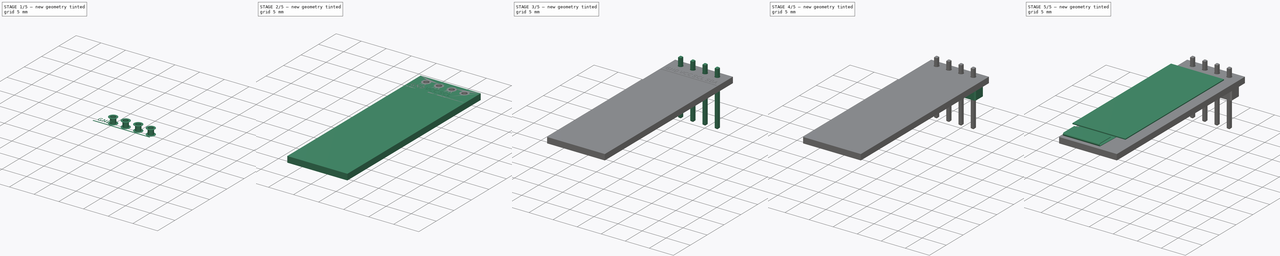
[diagram: build sequence overview — one tinted view per stage of 5, left to right]
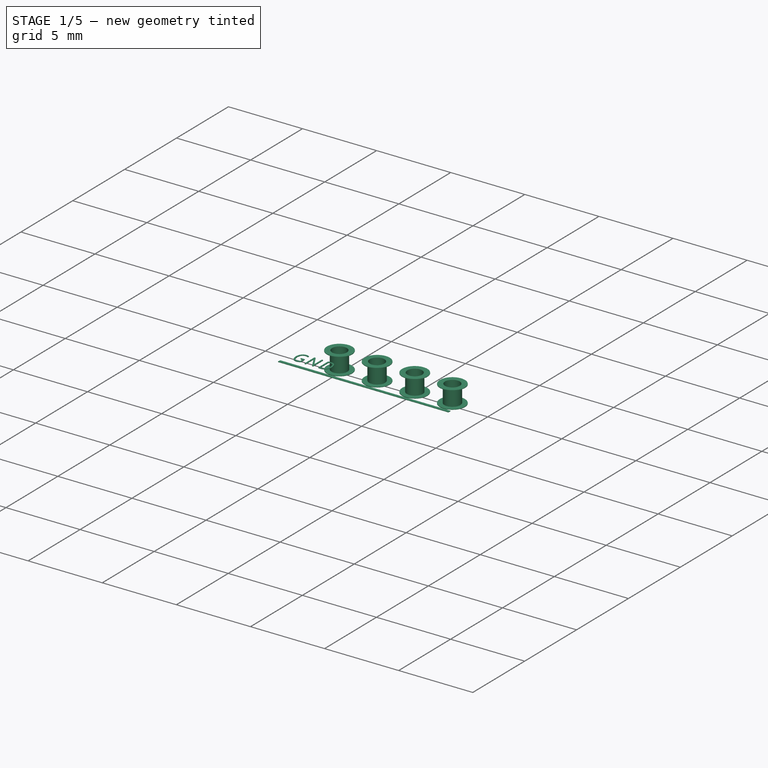
[diagram: stage 1 of 5 — iso view after this stage's code; geometry added in this stage tinted green]
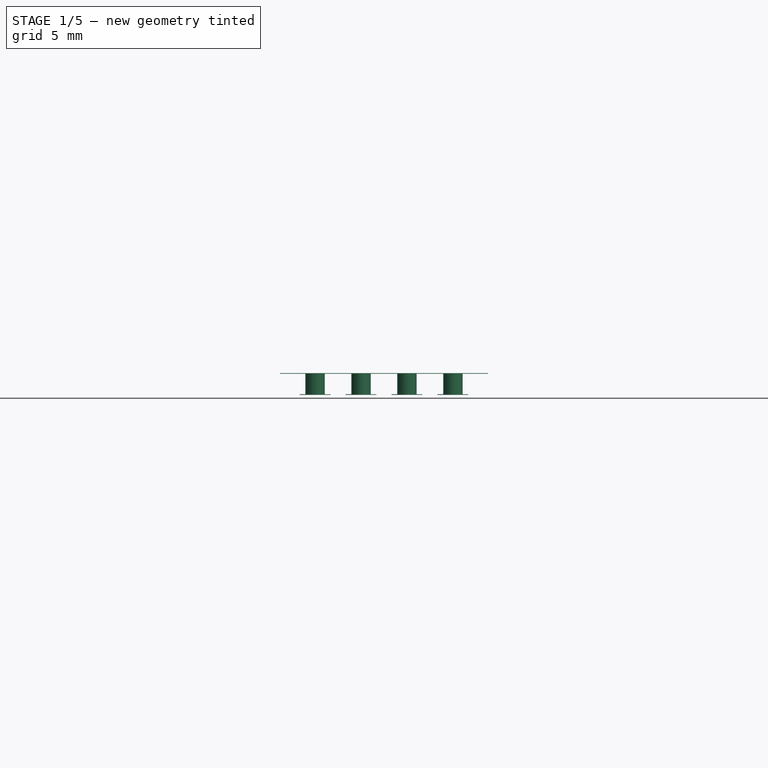
[diagram: stage 1 of 5 — front view after this stage's code; geometry added in this stage tinted green]
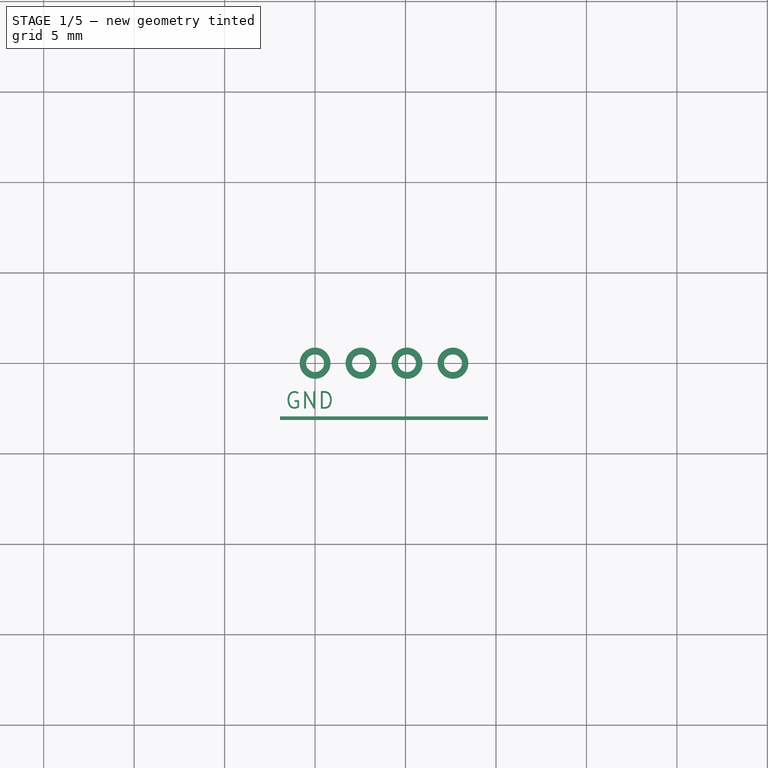
[diagram: stage 1 of 5 — top view after this stage's code; geometry added in this stage tinted green]
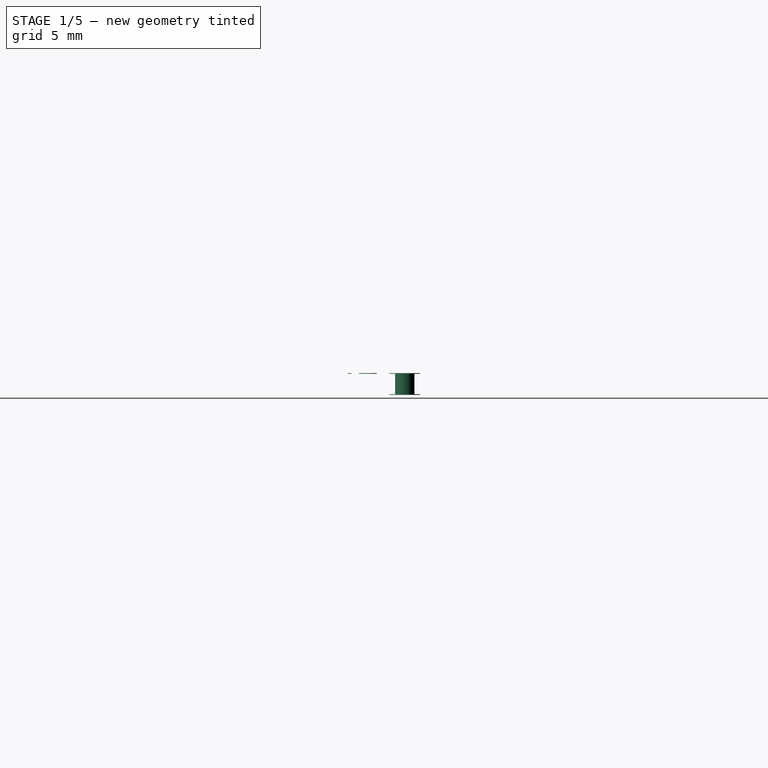
[diagram: stage 1 of 5 — right view after this stage's code; geometry added in this stage tinted green]
FCSTD DOCUMENT  (FreeCAD 1.0R39319 (Git))
Label: ER_OLEDM0.91_1x-I2C
License: All rights reserved
LicenseURL: https://en.wikipedia.org/wiki/All_rights_reserved
objects: Part::Extrusion×25, Sketcher::SketchObject×14, Part::Cut×10, Part::Part2DObjectPython×6, Image::ImagePlane×3, Part::Fuse×3, App::DocumentObjectGroup×2, Part::Chamfer×1
note: 73 computed .brp shape members not serialized (recipe doc carries the construction recipe); baked Part::Feature solids carry a one-line shape summary decoded from their .brp

FEATURE [Sketcher::SketchObject] Sketch002
  ArcFitTolerance = 1e-06
  FullyConstrained = true
  MakeInternals = false
  Placement = pos=(0,0,0) rot=(0.57735,0.57735,0.57735;2.0944rad)
  expr: Constraints[10] = Sketch001.Constraints[10]
  expr: Constraints[11] = Sketch001.Constraints[11]
  expr: Constraints[34] = Sketch001.Constraints[34]
  expr: Constraints[35] = Sketch001.Constraints[35]
  expr: Constraints[36] = Sketch001.Constraints[36]
  expr: Constraints[37] = Sketch001.Constraints[37]
  expr: Constraints[38] = Sketch001.Constraints[38]
  expr: Constraints[39] = Sketch001.Constraints[39]
  expr: Constraints[40] = Sketch001.Constraints[40]
  expr: Constraints[41] = Sketch001.Constraints[41]
  expr: Constraints[55] = Sketch001.Constraints[55]
  expr: Constraints[56] = Sketch001.Constraints[56]
  expr: Constraints[57] = Sketch001.Constraints[57]
  expr: Constraints[58] = Sketch001.Constraints[58]
  expr: Constraints[59] = Sketch001.Constraints[59]
  expr: Constraints[8] = Sketch001.Constraints[8]
  expr: Constraints[9] = Sketch001.Constraints[9]
  sketch-geometry (22):
    g0: LineSegment [constr] StartX=1.5 StartY=2.54 StartZ=0 EndX=1.5 EndY=3.74 EndZ=0
    g1: LineSegment [constr] StartX=1.5 StartY=3.74 StartZ=0 EndX=-36.5 EndY=3.74 EndZ=0
    g2: LineSegment [constr] StartX=-36.5 StartY=3.74 StartZ=0 EndX=-36.5 EndY=2.54 EndZ=0
    g3: LineSegment [constr] StartX=-36.5 StartY=2.54 StartZ=0 EndX=1.5 EndY=2.54 EndZ=0
    g4: LineSegment StartX=-3.5 StartY=3.74 StartZ=0 EndX=-3.5 EndY=5.04 EndZ=0
    g5: LineSegment StartX=-3.5 StartY=5.04 StartZ=0 EndX=-33.5 EndY=5.04 EndZ=0
    g6: LineSegment [constr] StartX=-4 StartY=5.04 StartZ=0 EndX=-4 EndY=5.24 EndZ=0
    g7: LineSegment [constr] StartX=-4 StartY=5.24 StartZ=0 EndX=-33.25 EndY=5.24 EndZ=0
    g8: LineSegment [constr] StartX=-33.25 StartY=5.24 StartZ=0 EndX=-33.25 EndY=5.04 EndZ=0
    g9: LineSegment [constr] StartX=-33.25 StartY=5.04 StartZ=0 EndX=-4 EndY=5.04 EndZ=0
    g10: LineSegment StartX=-3.5 StartY=3.74 StartZ=0 EndX=-30.1 EndY=3.74 EndZ=0
    g11: LineSegment StartX=-30.1 StartY=3.74 StartZ=0 EndX=-30.1 EndY=4.49 EndZ=0
    g12: LineSegment StartX=-30.1 StartY=4.49 StartZ=0 EndX=-33.5 EndY=4.49 EndZ=0
    g13: LineSegment StartX=-33.5 StartY=4.49 StartZ=0 EndX=-33.5 EndY=5.04 EndZ=0
    g14: LineSegment [constr] StartX=-32.7 StartY=4.49 StartZ=0 EndX=-32.7 EndY=4.39 EndZ=0
    g15: LineSegment [constr] StartX=-32.7 StartY=4.39 StartZ=0 EndX=-35.8 EndY=4.39 EndZ=0
    g16: LineSegment [constr] StartX=-32.7 StartY=4.49 StartZ=0 EndX=-35.8 EndY=4.49 EndZ=0
    g17: ArcOfCircle [constr] CenterX=-35.8 CenterY=4.19 CenterZ=0 NormalX=0 NormalY=0 NormalZ=1 AngleXU=0 Radius=0.2 StartAngle=1.5708 EndAngle=4.67748
    g18: ArcOfCircle [constr] CenterX=-35.8 CenterY=4.19 CenterZ=0 NormalX=0 NormalY=0 NormalZ=1 AngleXU=0 Radius=0.3 StartAngle=1.5708 EndAngle=4.6861
    g19: LineSegment [constr] StartX=-35.807 StartY=3.99012 StartZ=0 EndX=-30.1 EndY=3.79083 EndZ=0
    g20: LineSegment [constr] StartX=-30.1 StartY=3.79083 StartZ=0 EndX=-30.1 EndY=3.74 EndZ=0
    g21: LineSegment [constr] StartX=-30.1 StartY=3.74 StartZ=0 EndX=-35.8079 EndY=3.8901 EndZ=0
  constraints (62):
    c: Coincident(g0,g1)
    c: Coincident(g1,g2)
    c: Coincident(g2,g3)
    c: Coincident(g3,g0)
    c: Vertical(g0)
    c: Vertical(g2)
    c: Horizontal(g1)
    c: Horizontal(g3)
    c: Distance(g0,g2) = 38
    c: Distance(g1,g3) = 1.2
    c: Distance(g-2,g0) = 1.5
    c: DistanceY(g-1,g0) = 2.54
    c: Coincident(g4,g5)
    c: Vertical(g4)
    c: Horizontal(g5)
    c: PointOnObject(g4,g1)
    c: Coincident(g6,g7)
    c: Coincident(g7,g8)
    c: Coincident(g8,g9)
    c: Coincident(g9,g6)
    c: Vertical(g6)
    c: Vertical(g8)
    c: Horizontal(g7)
    c: Horizontal(g9)
    c: PointOnObject(g6,g5)
    c: Coincident(g10,g4)
    c: PointOnObject(g10,g1)
    c: Coincident(g11,g10)
    c: Coincident(g12,g11)
    c: Horizontal(g12)
    c: Coincident(g13,g12)
    c: Coincident(g13,g5)
    c: Vertical(g13)
    c: Vertical(g11)
    c: DistanceX(g5,g5) = 30
    c: DistanceX(g4,g0) = 5
    c: DistanceY(g11,g11) = 0.75
    c: DistanceY(g4,g4) = 1.3
    c: DistanceY(g6,g6) = 0.2
    c: DistanceX(g6,g4) = 0.5
    c: DistanceX(g7,g7) = 29.25
    c: DistanceX(g12,g12) = 3.4
    c: PointOnObject(g14,g12)
    c: Coincident(g15,g14)
    c: Horizontal(g15)
    c: Coincident(g16,g14)
    c: Horizontal(g16)
    c: Coincident(g18,g17)
    c: Tangent(g17,g15) = -1.5708
    c: Tangent(g18,g16) = -1.5708
    c: Coincident(g20,g19)
    c: Coincident(g21,g20)
    c: Tangent(g19,g17) = -1.5708
    c: Tangent(g21,g18) = 1.5708
    c: Vertical(g14)
    c: Distance(g14,g14) = 0.1
    c: DistanceX(g15,g15) = 3.1
    c: DistanceX(g12,g14) = 0.8
    c: Radius(g17) = 0.2
    c: Angle(g19,g15) = 0.0349066
    c: PointOnObject(g19,g11)
    c: Coincident(g20,g10)
FEATURE [Part::Extrusion] Extrude001  label="Panel"
  Base = -> Sketch002
  Dir = (1,0,0)
  DirMode = 2
  FaceMakerClass = Part::FaceMakerBullseye
  FaceMakerMode = 3
  LengthFwd = 9.56
  LengthRev = 1.94
  Solid = true
  Symmetric = false
FEATURE [App::DocumentObjectGroup] Group  label="Silkscreen"
  Group = -> [Extrude014,ShapeString002,ShapeString003,ShapeString004,ShapeString005,Extrude015,Extrude016,Extrude017,Extrude018]
FEATURE [Part::Extrusion] Extrude019  label="GNDText001"
  Base = -> ShapeString002
  Dir = (0,0,1)
  DirMode = 2
  FaceMakerClass = Part::FaceMakerBullseye
  FaceMakerMode = 3
  LengthFwd = 0
  LengthRev = 0.035
  Solid = false
  Symmetric = false
FEATURE [Part::Extrusion] Extrude023  label="SilkscreenLine001"
  Base = -> Sketch012
  Dir = (0,0,1)
  DirMode = 2
  FaceMakerClass = Part::FaceMakerBullseye
  FaceMakerMode = 3
  LengthFwd = 0
  LengthRev = 0.035
  Solid = true
  Symmetric = false
FEATURE [App::DocumentObjectGroup] Group001  label="PinHeader"
  Group = -> [Chamfer,Cut004]
FEATURE [Sketcher::SketchObject] Sketch013
  ArcFitTolerance = 1e-06
  AttachmentSupport = -> [Cut009]
  FullyConstrained = true
  MakeInternals = false
  MapMode = 5
  Placement = pos=(0,-8e-16,3.74) rot=(0,0,1;0rad)
  sketch-geometry (11):
    g0: Circle CenterX=0 CenterY=0 CenterZ=0 NormalX=0 NormalY=0 NormalZ=1 AngleXU=0 Radius=0.85
    g1: Circle CenterX=0 CenterY=0 CenterZ=0 NormalX=0 NormalY=0 NormalZ=1 AngleXU=0 Radius=0.5
    g2: Circle CenterX=2.54 CenterY=0 CenterZ=0 NormalX=0 NormalY=0 NormalZ=1 AngleXU=0 Radius=0.85
    g3: Circle CenterX=2.54 CenterY=0 CenterZ=0 NormalX=0 NormalY=0 NormalZ=1 AngleXU=0 Radius=0.5
    g4: Circle CenterX=5.08 CenterY=0 CenterZ=0 NormalX=0 NormalY=0 NormalZ=1 AngleXU=0 Radius=0.85
    g5: Circle CenterX=5.08 CenterY=0 CenterZ=0 NormalX=0 NormalY=0 NormalZ=1 AngleXU=0 Radius=0.5
    g6: Circle CenterX=7.62 CenterY=0 CenterZ=0 NormalX=0 NormalY=0 NormalZ=1 AngleXU=0 Radius=0.85
    g7: Circle CenterX=7.62 CenterY=0 CenterZ=0 NormalX=0 NormalY=0 NormalZ=1 AngleXU=0 Radius=0.5
    g8: LineSegment [constr] StartX=0 StartY=0 StartZ=0 EndX=2.54 EndY=0 EndZ=0
    g9: LineSegment [constr] StartX=2.54 StartY=0 StartZ=0 EndX=5.08 EndY=0 EndZ=0
    g10: LineSegment [constr] StartX=5.08 StartY=0 StartZ=0 EndX=7.62 EndY=0 EndZ=0
  constraints (25):
    c: Diameter(g0) = 1.7
    c: Coincident(g0,g-1)
    c: Coincident(g1,g0)
    c: Diameter(g1) = 1
    c: Diameter(g2) = 1.7
    c: Diameter(g4) = 1.7
    c: Diameter(g6) = 1.7
    c: Coincident(g3,g2)
    c: Coincident(g5,g4)
    c: Coincident(g7,g6)
    c: Diameter(g3) = 1
    c: Diameter(g5) = 1
    c: Diameter(g7) = 1
    c: Coincident(g8,g0)
    c: Coincident(g8,g2)
    c: Horizontal(g8)
    c: Coincident(g9,g2)
    c: Coincident(g9,g4)
    c: Horizontal(g9)
    c: Coincident(g10,g4)
    c: Coincident(g10,g6)
    c: Horizontal(g10)
    c: DistanceX(g8,g8) = 2.54
    c: Equal(g8,g9)
    c: Equal(g9,g10)
FEATURE [Part::Extrusion] Extrude024
  Base = -> Sketch013
  Dir = (0,0,1)
  DirMode = 2
  FaceMakerClass = Part::FaceMakerBullseye
  FaceMakerMode = 3
  LengthFwd = 0
  LengthRev = 0.035
  Solid = true
  Symmetric = false
FEATURE [Sketcher::SketchObject] Sketch014
  ArcFitTolerance = 1e-06
  AttachmentSupport = -> [Extrude024]
  FullyConstrained = true
  MakeInternals = false
  MapMode = 5
  Placement = pos=(0,0,3.74) rot=(0,0,1;0rad)
  sketch-geometry (11):
    g0: Circle CenterX=0 CenterY=0 CenterZ=0 NormalX=0 NormalY=0 NormalZ=1 AngleXU=0 Radius=0.5
    g1: Circle CenterX=0 CenterY=0 CenterZ=0 NormalX=0 NormalY=0 NormalZ=1 AngleXU=0 Radius=0.535
    g2: Circle CenterX=2.54 CenterY=0 CenterZ=0 NormalX=0 NormalY=0 NormalZ=1 AngleXU=0 Radius=0.5
    g3: Circle CenterX=2.54 CenterY=0 CenterZ=0 NormalX=0 NormalY=0 NormalZ=1 AngleXU=0 Radius=0.535
    g4: Circle CenterX=5.08 CenterY=0 CenterZ=0 NormalX=0 NormalY=0 NormalZ=1 AngleXU=0 Radius=0.5
    g5: Circle CenterX=5.08 CenterY=0 CenterZ=0 NormalX=0 NormalY=0 NormalZ=1 AngleXU=0 Radius=0.535
    g6: Circle CenterX=7.62 CenterY=0 CenterZ=0 NormalX=0 NormalY=0 NormalZ=1 AngleXU=0 Radius=0.5
    g7: Circle CenterX=7.62 CenterY=0 CenterZ=0 NormalX=0 NormalY=0 NormalZ=1 AngleXU=0 Radius=0.535
    g8: LineSegment [constr] StartX=0 StartY=0 StartZ=0 EndX=2.54 EndY=0 EndZ=0
    g9: LineSegment [constr] StartX=2.54 StartY=0 StartZ=0 EndX=5.08 EndY=0 EndZ=0
    g10: LineSegment [constr] StartX=5.08 StartY=0 StartZ=0 EndX=7.62 EndY=0 EndZ=0
  constraints (25):
    c: Diameter(g0) = 1
    c: Coincident(g0,g-1)
    c: Coincident(g1,g0)
    c: Distance(g1,g0) = 0.035
    c: Diameter(g2) = 1
    c: Diameter(g4) = 1
    c: Diameter(g6) = 1
    c: Coincident(g3,g2)
    c: Coincident(g5,g4)
    c: Coincident(g7,g6)
    c: Distance(g3,g2) = 0.035
    c: Distance(g5,g4) = 0.035
    c: Distance(g7,g6) = 0.035
    c: Coincident(g8,g0)
    c: Coincident(g8,g2)
    c: Horizontal(g8)
    c: Coincident(g9,g2)
    c: Coincident(g9,g4)
    c: Horizontal(g9)
    c: Coincident(g10,g4)
    c: Coincident(g10,g6)
    c: Horizontal(g10)
    c: Equal(g10,g9)
    c: Equal(g9,g8)
    c: DistanceX(g8,g8) = 2.54
FEATURE [Part::Extrusion] Extrude025
  Base = -> Sketch014
  Dir = (0,0,1)
  DirMode = 2
  FaceMakerClass = Part::FaceMakerBullseye
  FaceMakerMode = 3
  LengthFwd = 0
  LengthRev = 1.2
  Solid = true
  Symmetric = false
FEATURE [Sketcher::SketchObject] Sketch015
  ArcFitTolerance = 1e-06
  AttachmentSupport = -> [Extrude025]
  FullyConstrained = true
  MakeInternals = false
  MapMode = 5
  Placement = pos=(0,0,2.54) rot=(1,0,0;3.14159rad)
  expr: Constraints[0] = Sketch013.Constraints[0]
  expr: Constraints[10] = Sketch013.Constraints[10]
  expr: Constraints[11] = Sketch013.Constraints[11]
  expr: Constraints[12] = Sketch013.Constraints[12]
  expr: Constraints[22] = Sketch013.Constraints[22]
  expr: Constraints[3] = Sketch013.Constraints[3]
  expr: Constraints[4] = Sketch013.Constraints[4]
  expr: Constraints[5] = Sketch013.Constraints[5]
  expr: Constraints[6] = Sketch013.Constraints[6]
  sketch-geometry (11):
    g0: Circle CenterX=0 CenterY=0 CenterZ=0 NormalX=0 NormalY=0 NormalZ=1 AngleXU=0 Radius=0.85
    g1: Circle CenterX=0 CenterY=0 CenterZ=0 NormalX=0 NormalY=0 NormalZ=1 AngleXU=0 Radius=0.5
    g2: Circle CenterX=2.54 CenterY=0 CenterZ=0 NormalX=0 NormalY=0 NormalZ=1 AngleXU=0 Radius=0.85
    g3: Circle CenterX=2.54 CenterY=0 CenterZ=0 NormalX=0 NormalY=0 NormalZ=1 AngleXU=0 Radius=0.5
    g4: Circle CenterX=5.08 CenterY=0 CenterZ=0 NormalX=0 NormalY=0 NormalZ=1 AngleXU=0 Radius=0.85
    g5: Circle CenterX=5.08 CenterY=0 CenterZ=0 NormalX=0 NormalY=0 NormalZ=1 AngleXU=0 Radius=0.5
    g6: Circle CenterX=7.62 CenterY=0 CenterZ=0 NormalX=0 NormalY=0 NormalZ=1 AngleXU=0 Radius=0.85
    g7: Circle CenterX=7.62 CenterY=0 CenterZ=0 NormalX=0 NormalY=0 NormalZ=1 AngleXU=0 Radius=0.5
    g8: LineSegment [constr] StartX=0 StartY=0 StartZ=0 EndX=2.54 EndY=0 EndZ=0
    g9: LineSegment [constr] StartX=2.54 StartY=0 StartZ=0 EndX=5.08 EndY=0 EndZ=0
    g10: LineSegment [constr] StartX=5.08 StartY=0 StartZ=0 EndX=7.62 EndY=0 EndZ=0
  constraints (25):
    c: Diameter(g0) = 1.7
    c: Coincident(g0,g-1)
    c: Coincident(g1,g0)
    c: Diameter(g1) = 1
    c: Diameter(g2) = 1.7
    c: Diameter(g4) = 1.7
    c: Diameter(g6) = 1.7
    c: Coincident(g3,g2)
    c: Coincident(g5,g4)
    c: Coincident(g7,g6)
    c: Diameter(g3) = 1
    c: Diameter(g5) = 1
    c: Diameter(g7) = 1
    c: Coincident(g8,g0)
    c: Coincident(g8,g2)
    c: Horizontal(g8)
    c: Coincident(g9,g2)
    c: Coincident(g9,g4)
    c: Horizontal(g9)
    c: Coincident(g10,g4)
    c: Coincident(g10,g6)
    c: Horizontal(g10)
    c: DistanceX(g8,g8) = 2.54
    c: Equal(g8,g9)
    c: Equal(g9,g10)
FEATURE [Part::Extrusion] Extrude026
  Base = -> Sketch015
  Dir = (0,0,-1)
  DirMode = 2
  FaceMakerClass = Part::FaceMakerBullseye
  FaceMakerMode = 3
  LengthFwd = 0
  LengthRev = 0.035
  Solid = true
  Symmetric = false
FEATURE [Part::Fuse] Fusion
  Base = -> Extrude024
  Refine = true
  Tool = -> Extrude025
FEATURE [Part::Fuse] Fusion002  label="Plating001"
  Base = -> Extrude026
  Refine = true
  Tool = -> Fusion
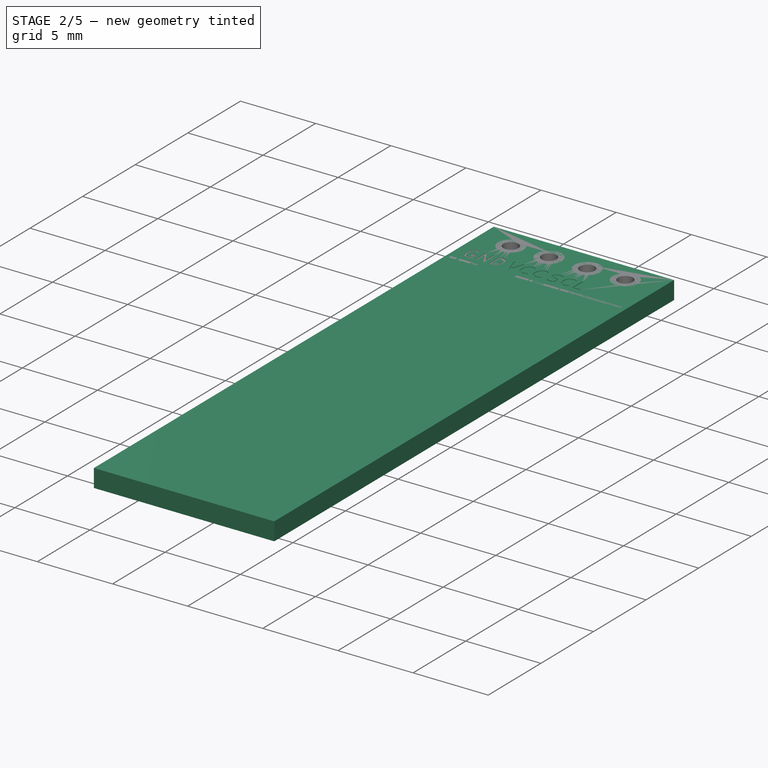
[diagram: stage 2 of 5 — iso view after this stage's code; geometry added in this stage tinted green]
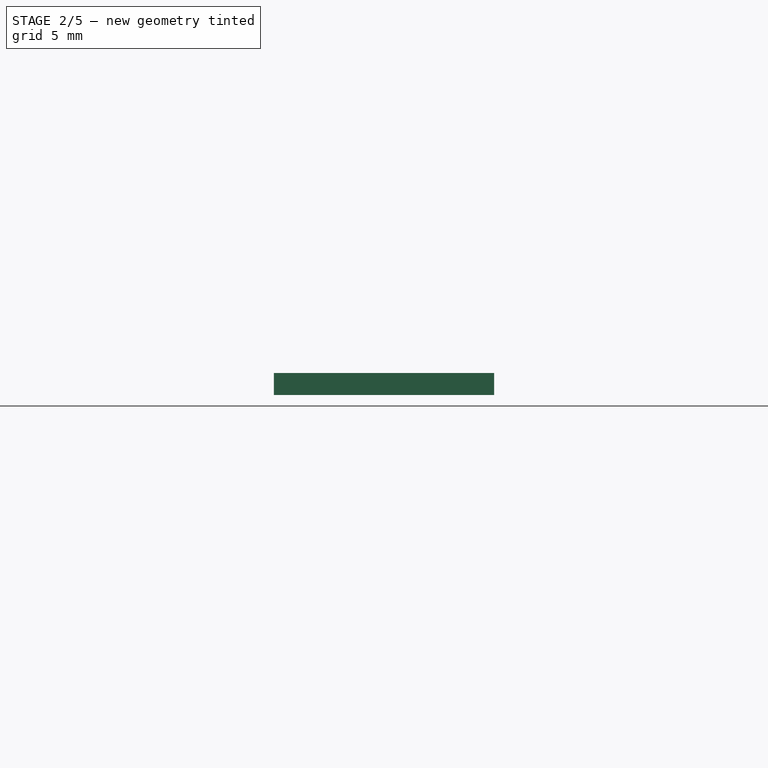
[diagram: stage 2 of 5 — front view after this stage's code; geometry added in this stage tinted green]
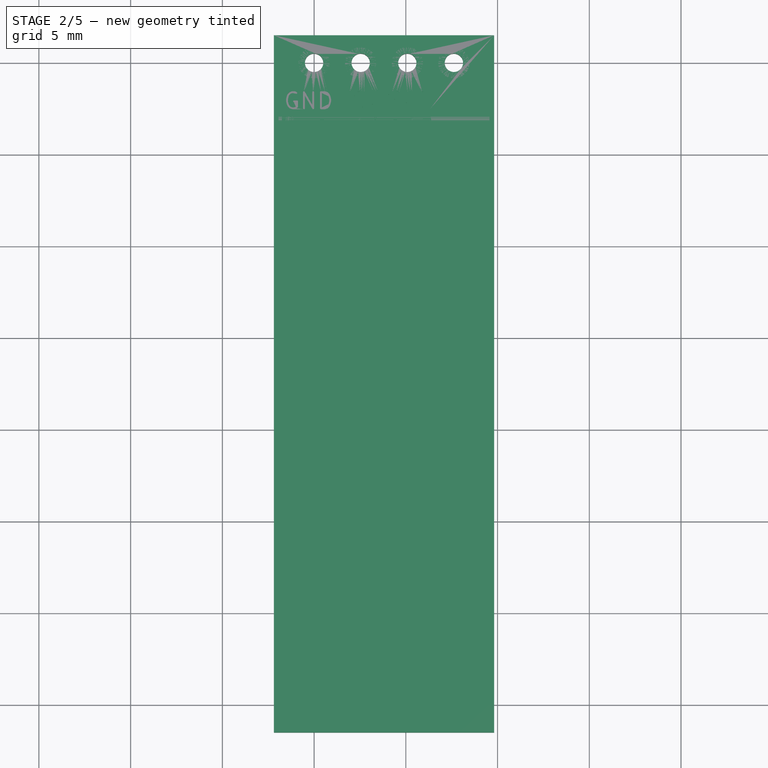
[diagram: stage 2 of 5 — top view after this stage's code; geometry added in this stage tinted green]
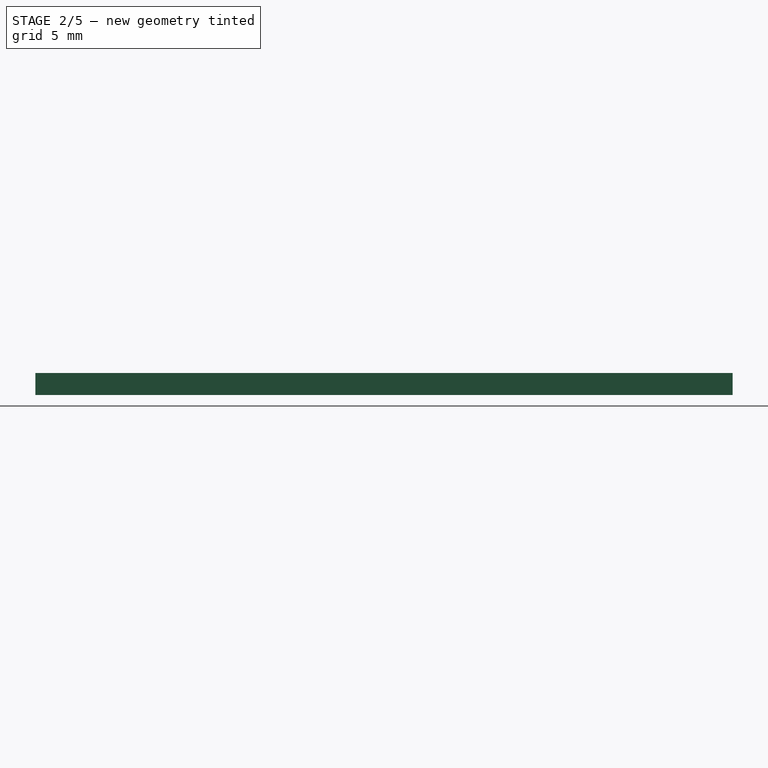
[diagram: stage 2 of 5 — right view after this stage's code; geometry added in this stage tinted green]
FEATURE [Sketcher::SketchObject] Sketch001  label="Master"
  ArcFitTolerance = 1e-06
  FullyConstrained = true
  MakeInternals = false
  Placement = pos=(0,0,0) rot=(0.57735,0.57735,0.57735;2.0944rad)
  sketch-geometry (22):
    g0: LineSegment StartX=1.5 StartY=2.54 StartZ=0 EndX=1.5 EndY=3.74 EndZ=0
    g1: LineSegment StartX=1.5 StartY=3.74 StartZ=0 EndX=-36.5 EndY=3.74 EndZ=0
    g2: LineSegment StartX=-36.5 StartY=3.74 StartZ=0 EndX=-36.5 EndY=2.54 EndZ=0
    g3: LineSegment StartX=-36.5 StartY=2.54 StartZ=0 EndX=1.5 EndY=2.54 EndZ=0
    g4: LineSegment StartX=-3.5 StartY=3.74 StartZ=0 EndX=-3.5 EndY=5.04 EndZ=0
    g5: LineSegment StartX=-3.5 StartY=5.04 StartZ=0 EndX=-33.5 EndY=5.04 EndZ=0
    g6: LineSegment StartX=-4 StartY=5.04 StartZ=0 EndX=-4 EndY=5.24 EndZ=0
    g7: LineSegment StartX=-4 StartY=5.24 StartZ=0 EndX=-33.25 EndY=5.24 EndZ=0
    g8: LineSegment StartX=-33.25 StartY=5.24 StartZ=0 EndX=-33.25 EndY=5.04 EndZ=0
    g9: LineSegment StartX=-33.25 StartY=5.04 StartZ=0 EndX=-4 EndY=5.04 EndZ=0
    g10: LineSegment StartX=-3.5 StartY=3.74 StartZ=0 EndX=-30.1 EndY=3.74 EndZ=0
    g11: LineSegment StartX=-30.1 StartY=3.74 StartZ=0 EndX=-30.1 EndY=4.49 EndZ=0
    g12: LineSegment StartX=-30.1 StartY=4.49 StartZ=0 EndX=-33.5 EndY=4.49 EndZ=0
    g13: LineSegment StartX=-33.5 StartY=4.49 StartZ=0 EndX=-33.5 EndY=5.04 EndZ=0
    g14: LineSegment StartX=-32.7 StartY=4.49 StartZ=0 EndX=-32.7 EndY=4.39 EndZ=0
    g15: LineSegment StartX=-32.7 StartY=4.39 StartZ=0 EndX=-35.8 EndY=4.39 EndZ=0
    g16: LineSegment StartX=-32.7 StartY=4.49 StartZ=0 EndX=-35.8 EndY=4.49 EndZ=0
    g17: ArcOfCircle CenterX=-35.8 CenterY=4.19 CenterZ=0 NormalX=0 NormalY=0 NormalZ=1 AngleXU=0 Radius=0.2 StartAngle=1.5708 EndAngle=4.67748
    g18: ArcOfCircle CenterX=-35.8 CenterY=4.19 CenterZ=0 NormalX=0 NormalY=0 NormalZ=1 AngleXU=0 Radius=0.3 StartAngle=1.5708 EndAngle=4.6861
    g19: LineSegment StartX=-35.807 StartY=3.99012 StartZ=0 EndX=-30.1 EndY=3.79083 EndZ=0
    g20: LineSegment StartX=-30.1 StartY=3.79083 StartZ=0 EndX=-30.1 EndY=3.74 EndZ=0
    g21: LineSegment StartX=-30.1 StartY=3.74 StartZ=0 EndX=-35.8079 EndY=3.8901 EndZ=0
  constraints (62):
    c: Coincident(g0,g1)
    c: Coincident(g1,g2)
    c: Coincident(g2,g3)
    c: Coincident(g3,g0)
    c: Vertical(g0)
    c: Vertical(g2)
    c: Horizontal(g1)
    c: Horizontal(g3)
    c: Distance(g0,g2) = 38
    c: Distance(g1,g3) = 1.2
    c: Distance(g-2,g0) = 1.5
    c: DistanceY(g-1,g0) = 2.54
    c: Coincident(g4,g5)
    c: Vertical(g4)
    c: Horizontal(g5)
    c: PointOnObject(g4,g1)
    c: Coincident(g6,g7)
    c: Coincident(g7,g8)
    c: Coincident(g8,g9)
    c: Coincident(g9,g6)
    c: Vertical(g6)
    c: Vertical(g8)
    c: Horizontal(g7)
    c: Horizontal(g9)
    c: PointOnObject(g6,g5)
    c: Coincident(g10,g4)
    c: PointOnObject(g10,g1)
    c: Coincident(g11,g10)
    c: Coincident(g12,g11)
    c: Horizontal(g12)
    c: Coincident(g13,g12)
    c: Coincident(g13,g5)
    c: Vertical(g13)
    c: Vertical(g11)
    c: DistanceX(g5,g5) = 30
    c: DistanceX(g4,g0) = 5
    c: DistanceY(g11,g11) = 0.75
    c: DistanceY(g4,g4) = 1.3
    c: DistanceY(g6,g6) = 0.2
    c: DistanceX(g6,g4) = 0.5
    c: DistanceX(g7,g7) = 29.25
    c: DistanceX(g12,g12) = 3.4
    c: PointOnObject(g14,g12)
    c: Coincident(g15,g14)
    c: Horizontal(g15)
    c: Coincident(g16,g14)
    c: Horizontal(g16)
    c: Coincident(g18,g17)
    c: Tangent(g17,g15) = -1.5708
    c: Tangent(g18,g16) = -1.5708
    c: Coincident(g20,g19)
    c: Coincident(g21,g20)
    c: Tangent(g19,g17) = -1.5708
    c: Tangent(g21,g18) = 1.5708
    c: Vertical(g14)
    c: Distance(g14,g14) = 0.1
    c: DistanceX(g15,g15) = 3.1
    c: DistanceX(g12,g14) = 0.8
    c: Radius(g17) = 0.2
    c: Angle(g19,g15) = 0.0349066
    c: PointOnObject(g19,g11)
    c: Coincident(g20,g10)
FEATURE [Image::ImagePlane] _025_12_30_165152_hyprshot  label="ReferenceImageSide"
  Placement = pos=(-3.9e-15,-17.365,0.04) rot=(0.57735,0.57735,0.57735;2.0944rad)
  XSize = 39.3282
  YSize = 12.8443
FEATURE [Sketcher::SketchObject] Sketch
  ArcFitTolerance = 1e-06
  FullyConstrained = true
  MakeInternals = false
  Placement = pos=(0,0,0) rot=(0.57735,0.57735,0.57735;2.0944rad)
  expr: Constraints[10] = Sketch001.Constraints[10]
  expr: Constraints[11] = Sketch001.Constraints[11]
  expr: Constraints[8] = Sketch001.Constraints[8]
  expr: Constraints[9] = Sketch001.Constraints[9]
  sketch-geometry (4):
    g0: LineSegment StartX=1.5 StartY=2.54 StartZ=0 EndX=1.5 EndY=3.74 EndZ=0
    g1: LineSegment StartX=1.5 StartY=3.74 StartZ=0 EndX=-36.5 EndY=3.74 EndZ=0
    g2: LineSegment StartX=-36.5 StartY=3.74 StartZ=0 EndX=-36.5 EndY=2.54 EndZ=0
    g3: LineSegment StartX=-36.5 StartY=2.54 StartZ=0 EndX=1.5 EndY=2.54 EndZ=0
  constraints (12):
    c: Coincident(g0,g1)
    c: Coincident(g1,g2)
    c: Coincident(g2,g3)
    c: Coincident(g3,g0)
    c: Vertical(g0)
    c: Vertical(g2)
    c: Horizontal(g1)
    c: Horizontal(g3)
    c: Distance(g0,g2) = 38
    c: Distance(g1,g3) = 1.2
    c: Distance(g-2,g0) = 1.5
    c: DistanceY(g-1,g0) = 2.54
FEATURE [Part::Extrusion] Extrude  label="PCB-noHole"
  Base = -> Sketch
  Dir = (1,0,0)
  DirMode = 2
  FaceMakerClass = Part::FaceMakerBullseye
  FaceMakerMode = 3
  LengthFwd = 9.81
  LengthRev = 2.19
  Solid = true
  Symmetric = false
FEATURE [Sketcher::SketchObject] Sketch006
  ArcFitTolerance = 1e-06
  AttachmentSupport = -> [Extrude]
  FullyConstrained = true
  MakeInternals = false
  MapMode = 5
  Placement = pos=(0,-8e-16,3.74) rot=(0,0,1;0rad)
  sketch-geometry (7):
    g0: Circle CenterX=0 CenterY=0 CenterZ=0 NormalX=0 NormalY=0 NormalZ=1 AngleXU=0 Radius=0.5
    g1: Circle CenterX=2.54 CenterY=0 CenterZ=0 NormalX=0 NormalY=0 NormalZ=1 AngleXU=0 Radius=0.5
    g2: Circle CenterX=5.08 CenterY=0 CenterZ=0 NormalX=0 NormalY=0 NormalZ=1 AngleXU=0 Radius=0.5
    g3: Circle CenterX=7.62 CenterY=0 CenterZ=0 NormalX=0 NormalY=0 NormalZ=1 AngleXU=0 Radius=0.5
    g4: LineSegment [constr] StartX=0 StartY=0 StartZ=0 EndX=2.54 EndY=0 EndZ=0
    g5: LineSegment [constr] StartX=2.54 StartY=0 StartZ=0 EndX=5.08 EndY=0 EndZ=0
    g6: LineSegment [constr] StartX=5.08 StartY=0 StartZ=0 EndX=7.62 EndY=0 EndZ=0
  constraints (17):
    c: Coincident(g0,g-1)
    c: Diameter(g0) = 1
    c: Equal(g0,g1)
    c: Equal(g0,g2)
    c: Equal(g0,g3)
    c: Coincident(g4,g0)
    c: Coincident(g4,g1)
    c: Horizontal(g4)
    c: Coincident(g5,g1)
    c: Coincident(g5,g2)
    c: Horizontal(g5)
    c: Coincident(g6,g2)
    c: Coincident(g6,g3)
    c: Horizontal(g6)
    c: Equal(g5,g4)
    c: Equal(g4,g6)
    c: DistanceX(g4,g4) = 2.54
FEATURE [Part::Extrusion] Extrude004
  Base = -> Sketch006
  Dir = (0,0,1)
  DirMode = 2
  FaceMakerClass = Part::FaceMakerBullseye
  FaceMakerMode = 3
  LengthFwd = 0
  LengthRev = 1.2
  Solid = true
  Symmetric = false
FEATURE [Part::Cut] Cut  label="PCB-NoText"
  Base = -> Extrude
  Refine = true
  Tool = -> Extrude004
FEATURE [Part::Extrusion] Extrude020  label="VCCText001"
  Base = -> ShapeString003
  Dir = (0,0,1)
  DirMode = 2
  FaceMakerClass = Part::FaceMakerBullseye
  FaceMakerMode = 3
  LengthFwd = 0
  LengthRev = 0.035
  Solid = false
  Symmetric = false
FEATURE [Part::Extrusion] Extrude021  label="SCLText001"
  Base = -> ShapeString004
  Dir = (0,0,1)
  DirMode = 2
  FaceMakerClass = Part::FaceMakerBullseye
  FaceMakerMode = 3
  LengthFwd = 0
  LengthRev = 0.035
  Solid = false
  Symmetric = false
FEATURE [Part::Cut] Cut005
  Base = -> Cut
  Refine = true
  Tool = -> Extrude019
FEATURE [Part::Cut] Cut006
  Base = -> Cut005
  Refine = true
  Tool = -> Extrude020
FEATURE [Part::Cut] Cut007
  Base = -> Cut006
  Refine = true
  Tool = -> Extrude021
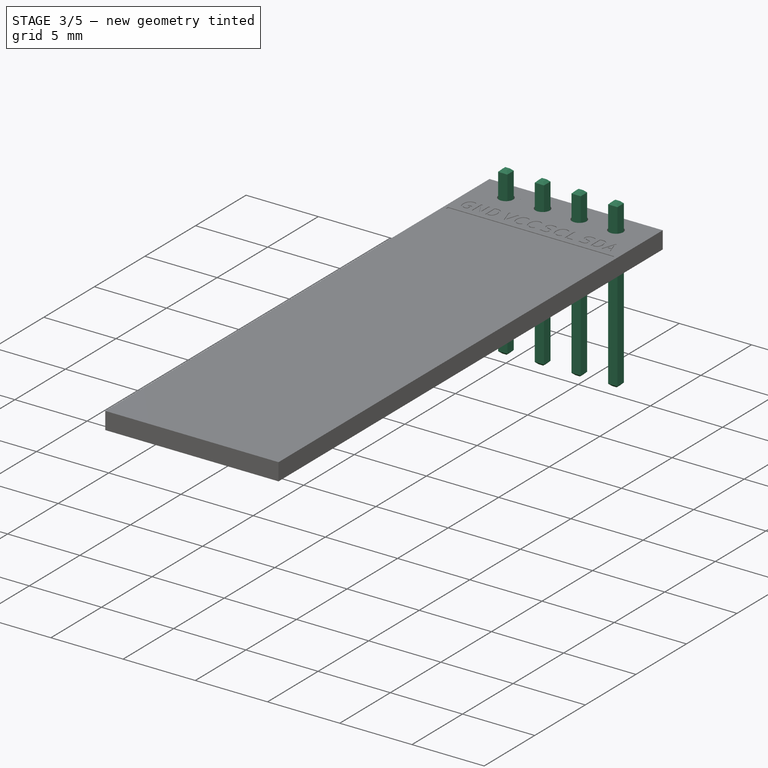
[diagram: stage 3 of 5 — iso view after this stage's code; geometry added in this stage tinted green]
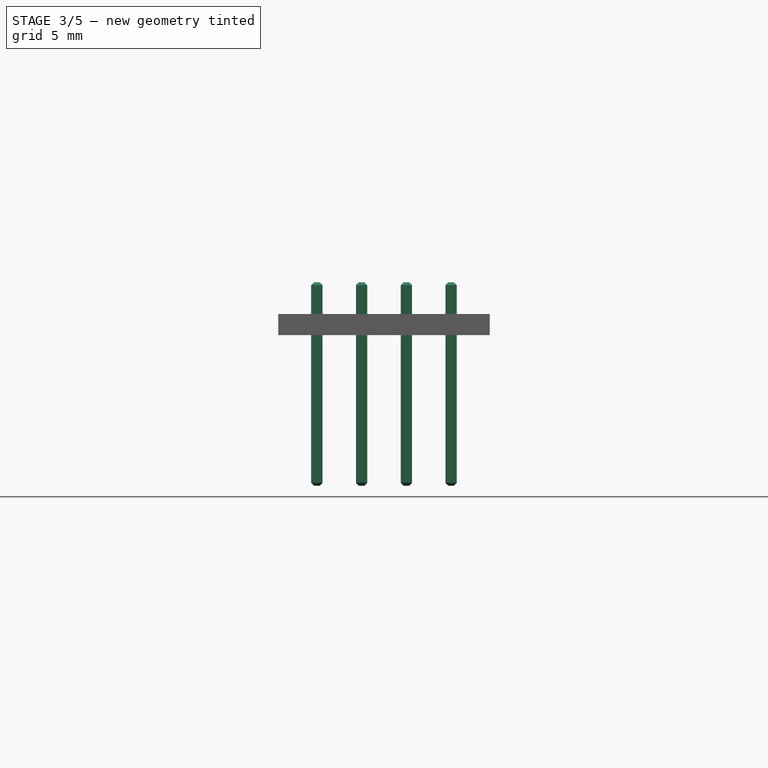
[diagram: stage 3 of 5 — front view after this stage's code; geometry added in this stage tinted green]
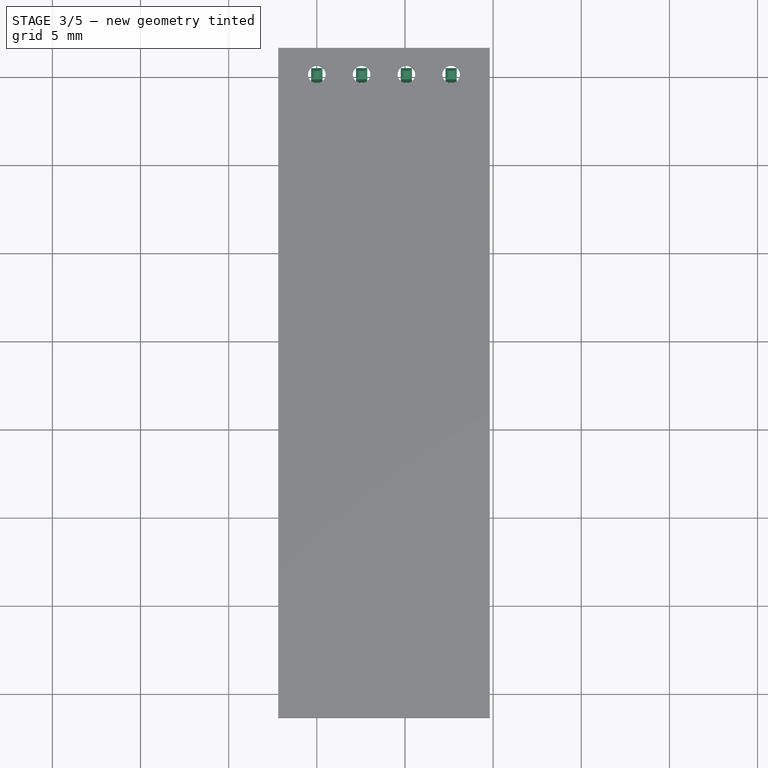
[diagram: stage 3 of 5 — top view after this stage's code; geometry added in this stage tinted green]
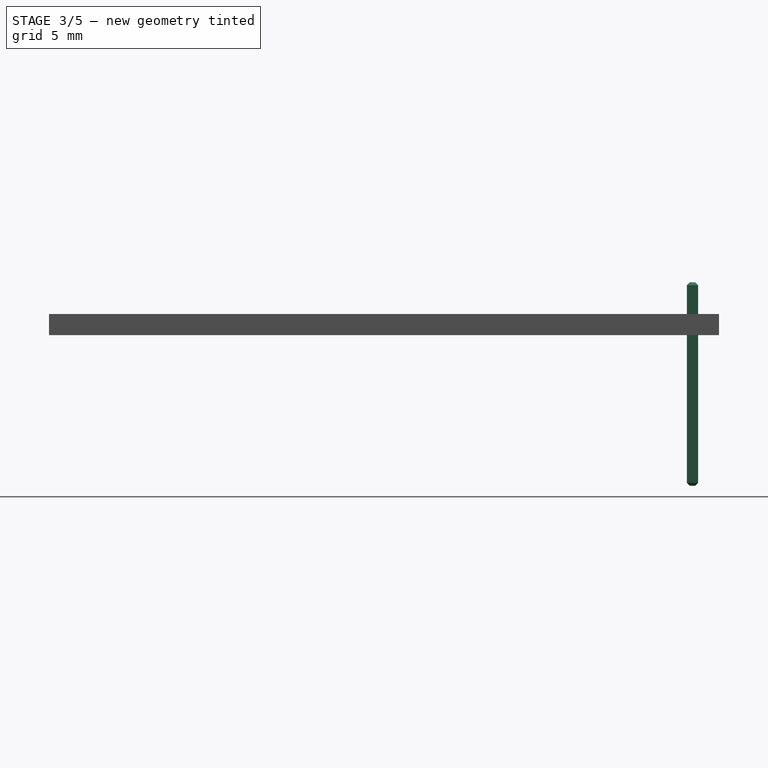
[diagram: stage 3 of 5 — right view after this stage's code; geometry added in this stage tinted green]
FEATURE [Sketcher::SketchObject] Sketch011
  ArcFitTolerance = 1e-06
  AttachmentSupport = -> [Cut]
  FullyConstrained = true
  MakeInternals = false
  MapMode = 5
  Placement = pos=(0,-6e-16,2.54) rot=(1,0,0;3.14159rad)
  sketch-geometry (19):
    g0: LineSegment StartX=-0.32 StartY=0.32 StartZ=0 EndX=-0.32 EndY=-0.32 EndZ=0
    g1: LineSegment StartX=-0.32 StartY=-0.32 StartZ=0 EndX=0.32 EndY=-0.32 EndZ=0
    g2: LineSegment StartX=0.32 StartY=-0.32 StartZ=0 EndX=0.32 EndY=0.32 EndZ=0
    g3: LineSegment StartX=0.32 StartY=0.32 StartZ=0 EndX=-0.32 EndY=0.32 EndZ=0
    g4: LineSegment StartX=2.22 StartY=0.32 StartZ=0 EndX=2.22 EndY=-0.32 EndZ=0
    g5: LineSegment StartX=2.22 StartY=-0.32 StartZ=0 EndX=2.86 EndY=-0.32 EndZ=0
    g6: LineSegment StartX=2.86 StartY=-0.32 StartZ=0 EndX=2.86 EndY=0.32 EndZ=0
    g7: LineSegment StartX=2.86 StartY=0.32 StartZ=0 EndX=2.22 EndY=0.32 EndZ=0
    g8: LineSegment StartX=4.76 StartY=0.32 StartZ=0 EndX=4.76 EndY=-0.32 EndZ=0
    g9: LineSegment StartX=4.76 StartY=-0.32 StartZ=0 EndX=5.4 EndY=-0.32 EndZ=0
    g10: LineSegment StartX=5.4 StartY=-0.32 StartZ=0 EndX=5.4 EndY=0.32 EndZ=0
    g11: LineSegment StartX=5.4 StartY=0.32 StartZ=0 EndX=4.76 EndY=0.32 EndZ=0
    g12: LineSegment StartX=7.3 StartY=0.32 StartZ=0 EndX=7.3 EndY=-0.32 EndZ=0
    g13: LineSegment StartX=7.3 StartY=-0.32 StartZ=0 EndX=7.94 EndY=-0.32 EndZ=0
    g14: LineSegment StartX=7.94 StartY=-0.32 StartZ=0 EndX=7.94 EndY=0.32 EndZ=0
    g15: LineSegment StartX=7.94 StartY=0.32 StartZ=0 EndX=7.3 EndY=0.32 EndZ=0
    g16: LineSegment [constr] StartX=0.32 StartY=0.32 StartZ=0 EndX=2.86 EndY=0.32 EndZ=0
    g17: LineSegment [constr] StartX=2.86 StartY=0.32 StartZ=0 EndX=5.4 EndY=0.32 EndZ=0
    g18: LineSegment [constr] StartX=5.4 StartY=0.32 StartZ=0 EndX=7.94 EndY=0.32 EndZ=0
  constraints (53):
    c: Coincident(g0,g1)
    c: Coincident(g1,g2)
    c: Coincident(g2,g3)
    c: Coincident(g3,g0)
    c: Vertical(g0)
    c: Vertical(g2)
    c: Horizontal(g1)
    c: Horizontal(g3)
    c: Symmetric(g2,g0,g-1)
    c: DistanceX(g3,g3) = 0.64
    c: Equal(g3,g0)
    c: Coincident(g4,g5)
    c: Coincident(g8,g9)
    c: Coincident(g12,g13)
    c: Coincident(g5,g6)
    c: Coincident(g9,g10)
    c: Coincident(g13,g14)
    c: Coincident(g6,g7)
    c: Coincident(g10,g11)
    c: Coincident(g14,g15)
    c: Coincident(g7,g4)
    c: Coincident(g11,g8)
    c: Coincident(g15,g12)
    c: Vertical(g4)
    c: Vertical(g8)
    c: Vertical(g12)
    c: Vertical(g6)
    c: Vertical(g10)
    c: Vertical(g14)
    c: Horizontal(g5)
    c: Horizontal(g9)
    c: Horizontal(g13)
    c: Horizontal(g7)
    c: Horizontal(g11)
    c: Horizontal(g15)
    c: Equal(g7,g4)
    c: Equal(g11,g8)
    c: Equal(g15,g12)
    c: Equal(g7,g3)
    c: Equal(g3,g11)
    c: Equal(g15,g3)
    c: Coincident(g16,g2)
    c: Coincident(g16,g6)
    c: Horizontal(g16)
    c: Coincident(g17,g6)
    c: Coincident(g17,g10)
    c: Horizontal(g17)
    c: Coincident(g18,g10)
    c: Coincident(g18,g14)
    c: Horizontal(g18)
    c: Equal(g16,g17)
    c: Equal(g16,g18)
    c: DistanceX(g16,g16) = 2.54
FEATURE [Part::Extrusion] Extrude013
  Base = -> Sketch011
  Dir = (0,0,-1)
  DirMode = 2
  FaceMakerClass = Part::FaceMakerBullseye
  FaceMakerMode = 3
  LengthFwd = 8.54
  LengthRev = 3
  Solid = true
  Symmetric = false
FEATURE [Part::Chamfer] Chamfer
  Base = -> Extrude013
  EdgeLinks = -> Extrude013 [Edge3,Edge4,Edge6,Edge7,Edge9,Edge10,Edge11,Edge12,Edge15,Edge16,Edge18,Edge19,Edge21,Edge22,Edge23,Edge24,Edge27,Edge28,Edge30,Edge31,Edge33,Edge34,Edge35,Edge36,Edge39,Edge40,Edge42,Edge43,Edge45,Edge46,Edge47,Edge48]
  Edges = 32 edges r=0.16: [Edge3,Edge4,Edge6,Edge7,Edge9,Edge10,Edge11,Edge12,Edge15,Edge16,Edge18,Edge19,Edge21,Edge22,Edge23,Edge24,Edge27,Edge28,Edge30,Edge31,Edge33,Edge34,Edge35,Edge36,Edge39,Edge40,Edge42,Edge43,Edge45,Edge46,Edge47,Edge48]
FEATURE [Part::Extrusion] Extrude022  label="SDAText001"
  Base = -> ShapeString005
  Dir = (0,0,1)
  DirMode = 2
  FaceMakerClass = Part::FaceMakerBullseye
  FaceMakerMode = 3
  LengthFwd = 0
  LengthRev = 0.035
  Solid = false
  Symmetric = false
FEATURE [Part::Cut] Cut008
  Base = -> Cut007
  Refine = true
  Tool = -> Extrude022
FEATURE [Part::Cut] Cut009  label="PCB-noPlatedHoles"
  Base = -> Cut008
  Refine = true
  Tool = -> Extrude023
FEATURE [Part::Fuse] Fusion001  label="Plating"
  Base = -> Extrude026
  Refine = true
  Tool = -> Fusion
FEATURE [Part::Cut] Cut010  label="PCB"
  Base = -> Cut009
  Refine = true
  Tool = -> Fusion002
note: 6 file-system paths scrubbed to <path> (originals preserved in the JSON sidecar)
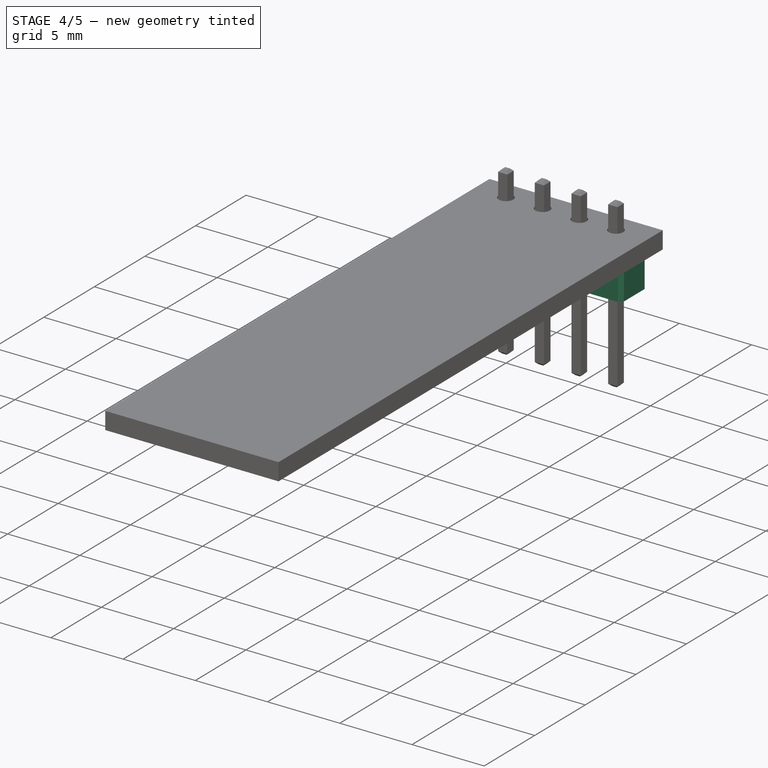
[diagram: stage 4 of 5 — iso view after this stage's code; geometry added in this stage tinted green]
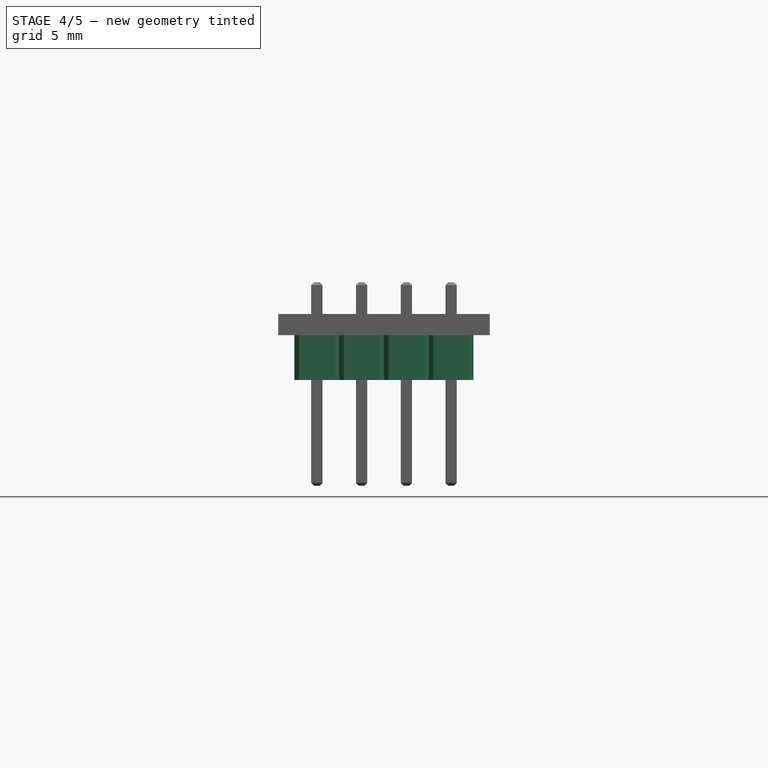
[diagram: stage 4 of 5 — front view after this stage's code; geometry added in this stage tinted green]
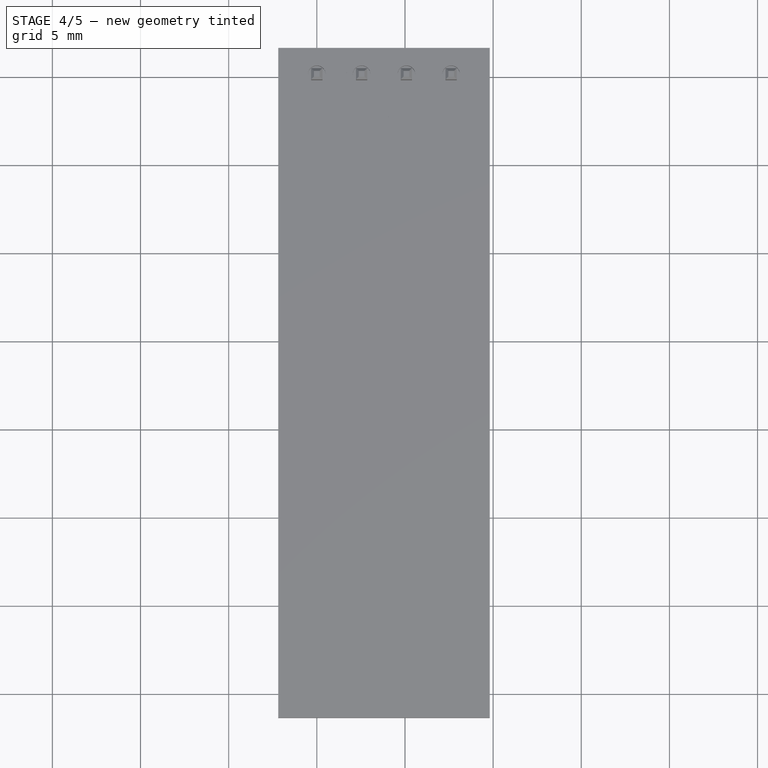
[diagram: stage 4 of 5 — top view after this stage's code; geometry added in this stage tinted green]
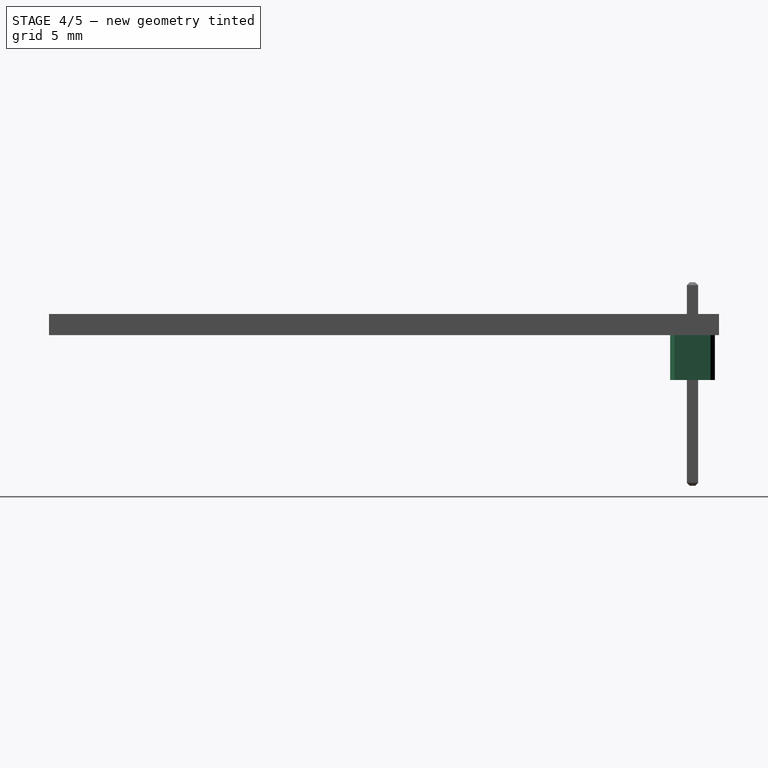
[diagram: stage 4 of 5 — right view after this stage's code; geometry added in this stage tinted green]
FEATURE [Sketcher::SketchObject] Sketch009
  ArcFitTolerance = 1e-06
  AttachmentSupport = -> [Cut]
  FullyConstrained = true
  MakeInternals = false
  MapMode = 5
  Placement = pos=(0,-6e-16,2.54) rot=(1,0,0;3.14159rad)
  sketch-geometry (35):
    g0: LineSegment StartX=-1.02 StartY=1.27 StartZ=0 EndX=1.02 EndY=1.27 EndZ=0
    g1: LineSegment StartX=1.02 StartY=1.27 StartZ=0 EndX=1.27 EndY=1.02 EndZ=0
    g2: LineSegment StartX=-1.02 StartY=1.27 StartZ=0 EndX=-1.27 EndY=1.02 EndZ=0
    g3: LineSegment StartX=-1.27 StartY=1.02 StartZ=0 EndX=-1.27 EndY=-1.02 EndZ=0
    g4: LineSegment StartX=-1.27 StartY=-1.02 StartZ=0 EndX=-1.02 EndY=-1.27 EndZ=0
    g5: LineSegment StartX=-1.02 StartY=-1.27 StartZ=0 EndX=1.02 EndY=-1.27 EndZ=0
    g6: LineSegment StartX=1.02 StartY=-1.27 StartZ=0 EndX=1.27 EndY=-1.02 EndZ=0
    g7: LineSegment StartX=1.27 StartY=1.02 StartZ=0 EndX=1.27 EndY=-1.02 EndZ=0
    g8: LineSegment StartX=1.52 StartY=1.27 StartZ=0 EndX=3.56 EndY=1.27 EndZ=0
    g9: LineSegment StartX=3.56 StartY=1.27 StartZ=0 EndX=3.81 EndY=1.02 EndZ=0
    g10: LineSegment StartX=1.52 StartY=1.27 StartZ=0 EndX=1.27 EndY=1.02 EndZ=0
    g11: LineSegment StartX=1.27 StartY=1.02 StartZ=0 EndX=1.27 EndY=-1.02 EndZ=0
    g12: LineSegment StartX=1.27 StartY=-1.02 StartZ=0 EndX=1.52 EndY=-1.27 EndZ=0
    g13: LineSegment StartX=1.52 StartY=-1.27 StartZ=0 EndX=3.56 EndY=-1.27 EndZ=0
    g14: LineSegment StartX=3.56 StartY=-1.27 StartZ=0 EndX=3.81 EndY=-1.02 EndZ=0
    g15: LineSegment StartX=3.81 StartY=1.02 StartZ=0 EndX=3.81 EndY=-1.02 EndZ=0
    g16: LineSegment StartX=4.06 StartY=1.27 StartZ=0 EndX=6.1 EndY=1.27 EndZ=0
    g17: LineSegment StartX=6.1 StartY=1.27 StartZ=0 EndX=6.35 EndY=1.02 EndZ=0
    g18: LineSegment StartX=4.06 StartY=1.27 StartZ=0 EndX=3.81 EndY=1.02 EndZ=0
    g19: LineSegment StartX=3.81 StartY=1.02 StartZ=0 EndX=3.81 EndY=-1.02 EndZ=0
    g20: LineSegment StartX=3.81 StartY=-1.02 StartZ=0 EndX=4.06 EndY=-1.27 EndZ=0
    g21: LineSegment StartX=4.06 StartY=-1.27 StartZ=0 EndX=6.1 EndY=-1.27 EndZ=0
    g22: LineSegment StartX=6.1 StartY=-1.27 StartZ=0 EndX=6.35 EndY=-1.02 EndZ=0
    g23: LineSegment StartX=6.35 StartY=1.02 StartZ=0 EndX=6.35 EndY=-1.02 EndZ=0
    g24: LineSegment StartX=6.6 StartY=1.27 StartZ=0 EndX=8.64 EndY=1.27 EndZ=0
    g25: LineSegment StartX=8.64 StartY=1.27 StartZ=0 EndX=8.89 EndY=1.02 EndZ=0
    g26: LineSegment StartX=6.6 StartY=1.27 StartZ=0 EndX=6.35 EndY=1.02 EndZ=0
    g27: LineSegment StartX=6.35 StartY=1.02 StartZ=0 EndX=6.35 EndY=-1.02 EndZ=0
    g28: LineSegment StartX=6.35 StartY=-1.02 StartZ=0 EndX=6.6 EndY=-1.27 EndZ=0
    g29: LineSegment StartX=6.6 StartY=-1.27 StartZ=0 EndX=8.64 EndY=-1.27 EndZ=0
    g30: LineSegment StartX=8.89 StartY=1.02 StartZ=0 EndX=8.89 EndY=-1.02 EndZ=0
    g31: LineSegment [constr] StartX=-1.02 StartY=1.27 StartZ=0 EndX=1.52 EndY=1.27 EndZ=0
    g32: LineSegment [constr] StartX=1.52 StartY=1.27 StartZ=0 EndX=4.06 EndY=1.27 EndZ=0
    g33: LineSegment [constr] StartX=4.06 StartY=1.27 StartZ=0 EndX=6.6 EndY=1.27 EndZ=0
    g34: LineSegment StartX=8.89 StartY=-1.02 StartZ=0 EndX=8.64 EndY=-1.27 EndZ=0
  constraints (101):
    c: Horizontal(g0)
    c: Coincident(g1,g0)
    c: Coincident(g2,g0)
    c: Coincident(g3,g2)
    c: Vertical(g3)
    c: Coincident(g4,g3)
    c: Coincident(g5,g4)
    c: Horizontal(g5)
    c: Coincident(g6,g5)
    c: Equal(g0,g3)
    c: Equal(g3,g5)
    c: Equal(g4,g2)
    c: Equal(g2,g1)
    c: Equal(g2,g6)
    c: Parallel(g2,g6)
    c: Perpendicular(g2,g1)
    c: Perpendicular(g4,g2)
    c: DistanceX(g2,g0) = 0.25
    c: Angle(g0,g2) = 0.785398
    c: Symmetric(g0,g4,g-1)
    c: Distance(g5,g0) = 2.54
    c: Coincident(g7,g1)
    c: Coincident(g7,g6)
    c: Horizontal(g8)
    c: Horizontal(g16)
    c: Horizontal(g24)
    c: Coincident(g9,g8)
    c: Coincident(g17,g16)
    c: Coincident(g25,g24)
    c: Coincident(g10,g8)
    c: Coincident(g18,g16)
    c: Coincident(g26,g24)
    c: Coincident(g11,g10)
    c: Coincident(g19,g18)
    c: Coincident(g27,g26)
    c: Vertical(g11)
    c: Vertical(g19)
    c: Vertical(g27)
    c: Coincident(g12,g11)
    c: Coincident(g20,g19)
    c: Coincident(g28,g27)
    c: Coincident(g13,g12)
    c: Coincident(g21,g20)
    c: Coincident(g29,g28)
    c: Horizontal(g13)
    c: Horizontal(g21)
    c: Horizontal(g29)
    c: Coincident(g14,g13)
    c: Coincident(g22,g21)
    c: Equal(g8,g11)
    c: Equal(g16,g19)
    c: Equal(g24,g27)
    c: Equal(g11,g13)
    c: Equal(g19,g21)
    c: Equal(g27,g29)
    c: Equal(g12,g10)
    c: Equal(g20,g18)
    c: Equal(g28,g26)
    c: Equal(g10,g9)
    c: Equal(g18,g17)
    c: Equal(g26,g25)
    c: Equal(g10,g14)
    c: Equal(g18,g22)
    c: Parallel(g10,g14)
    c: Parallel(g18,g22)
    c: Perpendicular(g10,g9)
    c: Perpendicular(g18,g17)
    c: Perpendicular(g26,g25)
    c: Perpendicular(g12,g10)
    c: Perpendicular(g20,g18)
    c: Perpendicular(g28,g26)
    c: DistanceX(g10,g8) = 0.25
    c: DistanceX(g18,g16) = 0.25
    c: DistanceX(g26,g24) = 0.25
    c: Angle(g8,g10) = 0.785398
    c: Angle(g16,g18) = 0.785398
    c: Angle(g24,g26) = 0.785398
    c: Distance(g13,g8) = 2.54
    c: Distance(g21,g16) = 2.54
    c: Distance(g29,g24) = 2.54
    c: Coincident(g15,g9)
    c: Coincident(g23,g17)
    c: Coincident(g30,g25)
    c: Coincident(g15,g14)
    c: Coincident(g23,g22)
    c: Coincident(g31,g0)
    c: Coincident(g31,g8)
    c: Horizontal(g31)
    c: Coincident(g32,g8)
    c: Coincident(g32,g16)
    c: Horizontal(g32)
    c: Coincident(g33,g16)
    c: Coincident(g33,g24)
    c: Horizontal(g33)
    c: Equal(g31,g32)
    c: Equal(g31,g33)
    c: DistanceX(g31,g31) = 2.54
    c: Coincident(g34,g30)
    c: Coincident(g34,g29)
    c: Vertical(g30)
    c: Perpendicular(g28,g34)
FEATURE [Part::Extrusion] Extrude011
  Base = -> Sketch009
  Dir = (0,0,-1)
  DirMode = 2
  FaceMakerClass = Part::FaceMakerBullseye
  FaceMakerMode = 3
  LengthFwd = 2.54
  LengthRev = 0
  Solid = true
  Symmetric = false
FEATURE [Sketcher::SketchObject] Sketch010
  ArcFitTolerance = 1e-06
  AttachmentSupport = -> [Cut]
  FullyConstrained = true
  MakeInternals = false
  MapMode = 5
  Placement = pos=(0,-6e-16,2.54) rot=(1,0,0;3.14159rad)
  sketch-geometry (19):
    g0: LineSegment StartX=-0.32 StartY=0.32 StartZ=0 EndX=-0.32 EndY=-0.32 EndZ=0
    g1: LineSegment StartX=-0.32 StartY=-0.32 StartZ=0 EndX=0.32 EndY=-0.32 EndZ=0
    g2: LineSegment StartX=0.32 StartY=-0.32 StartZ=0 EndX=0.32 EndY=0.32 EndZ=0
    g3: LineSegment StartX=0.32 StartY=0.32 StartZ=0 EndX=-0.32 EndY=0.32 EndZ=0
    g4: LineSegment StartX=2.22 StartY=0.32 StartZ=0 EndX=2.22 EndY=-0.32 EndZ=0
    g5: LineSegment StartX=2.22 StartY=-0.32 StartZ=0 EndX=2.86 EndY=-0.32 EndZ=0
    g6: LineSegment StartX=2.86 StartY=-0.32 StartZ=0 EndX=2.86 EndY=0.32 EndZ=0
    g7: LineSegment StartX=2.86 StartY=0.32 StartZ=0 EndX=2.22 EndY=0.32 EndZ=0
    g8: LineSegment StartX=4.76 StartY=0.32 StartZ=0 EndX=4.76 EndY=-0.32 EndZ=0
    g9: LineSegment StartX=4.76 StartY=-0.32 StartZ=0 EndX=5.4 EndY=-0.32 EndZ=0
    g10: LineSegment StartX=5.4 StartY=-0.32 StartZ=0 EndX=5.4 EndY=0.32 EndZ=0
    g11: LineSegment StartX=5.4 StartY=0.32 StartZ=0 EndX=4.76 EndY=0.32 EndZ=0
    g12: LineSegment StartX=7.3 StartY=0.32 StartZ=0 EndX=7.3 EndY=-0.32 EndZ=0
    g13: LineSegment StartX=7.3 StartY=-0.32 StartZ=0 EndX=7.94 EndY=-0.32 EndZ=0
    g14: LineSegment StartX=7.94 StartY=-0.32 StartZ=0 EndX=7.94 EndY=0.32 EndZ=0
    g15: LineSegment StartX=7.94 StartY=0.32 StartZ=0 EndX=7.3 EndY=0.32 EndZ=0
    g16: LineSegment [constr] StartX=0.32 StartY=0.32 StartZ=0 EndX=2.86 EndY=0.32 EndZ=0
    g17: LineSegment [constr] StartX=2.86 StartY=0.32 StartZ=0 EndX=5.4 EndY=0.32 EndZ=0
    g18: LineSegment [constr] StartX=5.4 StartY=0.32 StartZ=0 EndX=7.94 EndY=0.32 EndZ=0
  constraints (53):
    c: Coincident(g0,g1)
    c: Coincident(g1,g2)
    c: Coincident(g2,g3)
    c: Coincident(g3,g0)
    c: Vertical(g0)
    c: Vertical(g2)
    c: Horizontal(g1)
    c: Horizontal(g3)
    c: Symmetric(g2,g0,g-1)
    c: DistanceX(g3,g3) = 0.64
    c: Equal(g3,g0)
    c: Coincident(g4,g5)
    c: Coincident(g8,g9)
    c: Coincident(g12,g13)
    c: Coincident(g5,g6)
    c: Coincident(g9,g10)
    c: Coincident(g13,g14)
    c: Coincident(g6,g7)
    c: Coincident(g10,g11)
    c: Coincident(g14,g15)
    c: Coincident(g7,g4)
    c: Coincident(g11,g8)
    c: Coincident(g15,g12)
    c: Vertical(g4)
    c: Vertical(g8)
    c: Vertical(g12)
    c: Vertical(g6)
    c: Vertical(g10)
    c: Vertical(g14)
    c: Horizontal(g5)
    c: Horizontal(g9)
    c: Horizontal(g13)
    c: Horizontal(g7)
    c: Horizontal(g11)
    c: Horizontal(g15)
    c: Equal(g7,g4)
    c: Equal(g11,g8)
    c: Equal(g15,g12)
    c: Equal(g7,g3)
    c: Equal(g3,g11)
    c: Equal(g15,g3)
    c: Coincident(g16,g2)
    c: Coincident(g16,g6)
    c: Horizontal(g16)
    c: Coincident(g17,g6)
    c: Coincident(g17,g10)
    c: Horizontal(g17)
    c: Coincident(g18,g10)
    c: Coincident(g18,g14)
    c: Horizontal(g18)
    c: Equal(g16,g17)
    c: Equal(g16,g18)
    c: DistanceX(g16,g16) = 2.54
FEATURE [Part::Extrusion] Extrude012
  Base = -> Sketch010
  Dir = (0,0,-1)
  DirMode = 2
  FaceMakerClass = Part::FaceMakerBullseye
  FaceMakerMode = 3
  LengthFwd = 2.54
  LengthRev = 0
  Solid = true
  Symmetric = false
FEATURE [Part::Cut] Cut004
  Base = -> Extrude011
  Refine = true
  Tool = -> Extrude012
FEATURE [Sketcher::SketchObject] Sketch012
  ArcFitTolerance = 1e-06
  AttachmentSupport = -> [Cut]
  ExternalGeometry = -> [Extrude001]
  FullyConstrained = true
  MakeInternals = false
  MapMode = 5
  Placement = pos=(0,-8e-16,3.74) rot=(0,0,1;0rad)
  sketch-geometry (4):
    g0: LineSegment StartX=-1.94 StartY=-3.15 StartZ=0 EndX=9.56 EndY=-3.15 EndZ=0
    g1: LineSegment StartX=9.56 StartY=-2.95 StartZ=0 EndX=-1.94 EndY=-2.95 EndZ=0
    g2: LineSegment StartX=9.56 StartY=-2.95 StartZ=0 EndX=9.56 EndY=-3.15 EndZ=0
    g3: LineSegment StartX=-1.94 StartY=-2.95 StartZ=0 EndX=-1.94 EndY=-3.15 EndZ=0
  constraints (12):
    c: Horizontal(g0)
    c: Horizontal(g1)
    c: Distance(g0,g1) = 0.2
    c: Coincident(g2,g1)
    c: Coincident(g2,g0)
    c: Vertical(g2)
    c: Coincident(g3,g1)
    c: Coincident(g3,g0)
    c: Vertical(g3)
    c: Vertical(g0,g-4)
    c: DistanceY(g-3,g0) = 0.35
    c: Vertical(g0,g-3)
FEATURE [Image::ImagePlane] _026_01_27_220339_hyprshot  label="ReferenceImageTop"
  Placement = pos=(5.78,-21.475,7) rot=(0,0,1;3.14159rad)
  XSize = 29.1893
  YSize = 49.4753
FEATURE [Image::ImagePlane] _026_01_27_221159_hyprshot  label="ReferenceImageTop-Photo"
  Placement = pos=(3.8,-17.8,7) rot=(0,0,1;4.71239rad)
  XSize = 39.4244
  YSize = 14.4655
FEATURE [Part::Extrusion] Extrude014  label="SilkscreenLine"
  Base = -> Sketch012
  Dir = (0,0,1)
  DirMode = 2
  FaceMakerClass = Part::FaceMakerBullseye
  FaceMakerMode = 3
  LengthFwd = 0
  LengthRev = 0.035
  Solid = true
  Symmetric = false
FEATURE [Part::Part2DObjectPython] ShapeString002  label="GNDShapeString"  # Draft 2D object (typed FeaturePython)
  FontFile = <path>
  Fuse = false
  Justification = 4
  JustificationReference = 0
  KeepLeftMargin = false
  MakeFace = true
  ObliqueAngle = 0
  Placement = pos=(-0.3,-2.05,3.74) rot=(0,0,1;0rad)
  ScaleToSize = true
  Size = 1
  String = GND
  Tracking = 0
FEATURE [Part::Part2DObjectPython] ShapeString003  label="VCCShapeString"  # Draft 2D object (typed FeaturePython)
  FontFile = <path>
  Fuse = false
  Justification = 4
  JustificationReference = 0
  KeepLeftMargin = false
  MakeFace = true
  ObliqueAngle = 0
  Placement = pos=(2.5,-2.05,3.74) rot=(0,0,1;0rad)
  ScaleToSize = true
  Size = 1
  String = VCC
  Tracking = 0
FEATURE [Part::Part2DObjectPython] ShapeString004  label="SCLShapeString"  # Draft 2D object (typed FeaturePython)
  FontFile = <path>
  Fuse = false
  Justification = 4
  JustificationReference = 0
  KeepLeftMargin = false
  MakeFace = true
  ObliqueAngle = 0
  Placement = pos=(5.2,-2.05,3.74) rot=(0,0,1;0rad)
  ScaleToSize = true
  Size = 1
  String = SCL
  Tracking = 0
FEATURE [Part::Part2DObjectPython] ShapeString005  label="SDAShapeString"  # Draft 2D object (typed FeaturePython)
  FontFile = <path>
  Fuse = false
  Justification = 4
  JustificationReference = 0
  KeepLeftMargin = false
  MakeFace = true
  ObliqueAngle = 0
  Placement = pos=(7.9,-2.05,3.74) rot=(0,0,1;0rad)
  ScaleToSize = true
  Size = 1
  String = SDA
  Tracking = 0
FEATURE [Part::Extrusion] Extrude015  label="GNDText"
  Base = -> ShapeString002
  Dir = (0,0,1)
  DirMode = 2
  FaceMakerClass = Part::FaceMakerBullseye
  FaceMakerMode = 3
  LengthFwd = 0
  LengthRev = 0.035
  Solid = false
  Symmetric = false
FEATURE [Part::Extrusion] Extrude016  label="VCCText"
  Base = -> ShapeString003
  Dir = (0,0,1)
  DirMode = 2
  FaceMakerClass = Part::FaceMakerBullseye
  FaceMakerMode = 3
  LengthFwd = 0
  LengthRev = 0.035
  Solid = false
  Symmetric = false
FEATURE [Part::Extrusion] Extrude017  label="SCLText"
  Base = -> ShapeString004
  Dir = (0,0,1)
  DirMode = 2
  FaceMakerClass = Part::FaceMakerBullseye
  FaceMakerMode = 3
  LengthFwd = 0
  LengthRev = 0.035
  Solid = false
  Symmetric = false
FEATURE [Part::Extrusion] Extrude018  label="SDAText"
  Base = -> ShapeString005
  Dir = (0,0,1)
  DirMode = 2
  FaceMakerClass = Part::FaceMakerBullseye
  FaceMakerMode = 3
  LengthFwd = 0
  LengthRev = 0.035
  Solid = false
  Symmetric = false
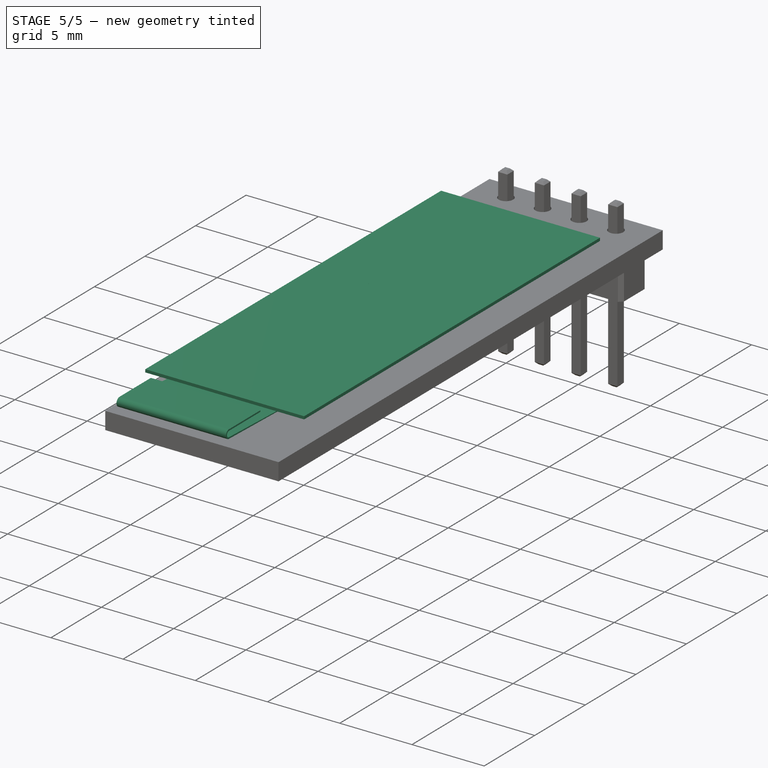
[diagram: stage 5 of 5 — iso view after this stage's code; geometry added in this stage tinted green]
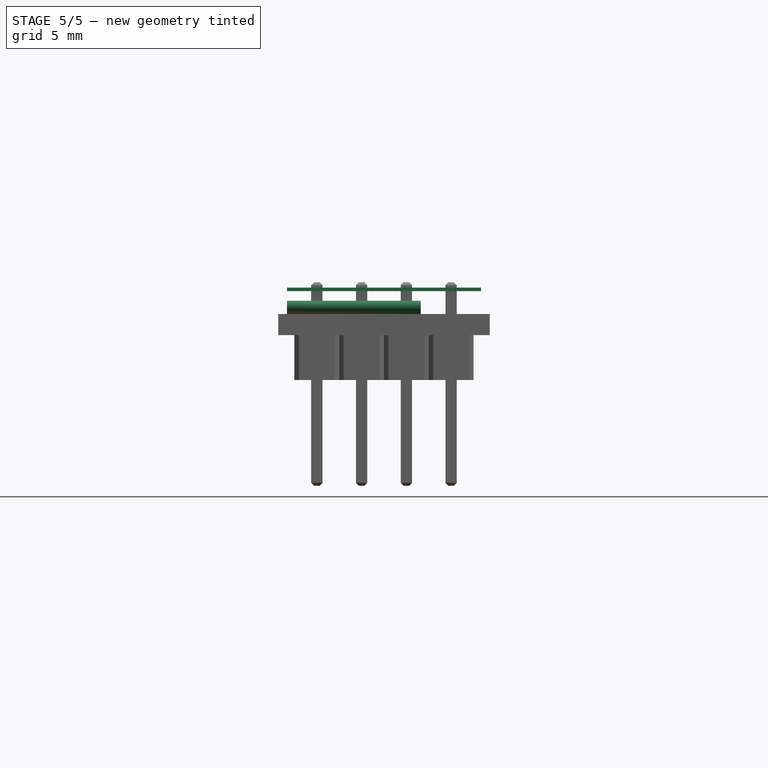
[diagram: stage 5 of 5 — front view after this stage's code; geometry added in this stage tinted green]
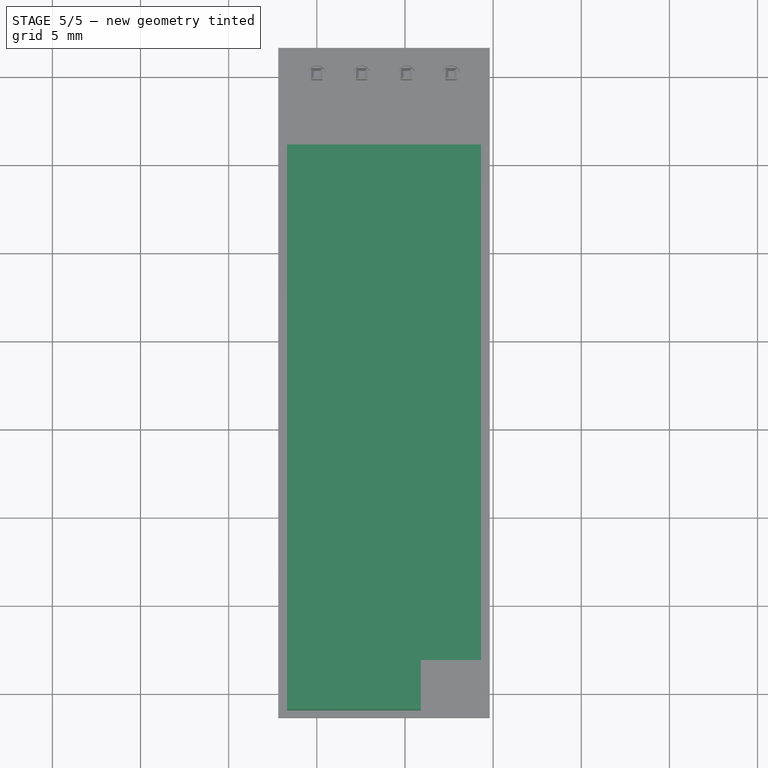
[diagram: stage 5 of 5 — top view after this stage's code; geometry added in this stage tinted green]
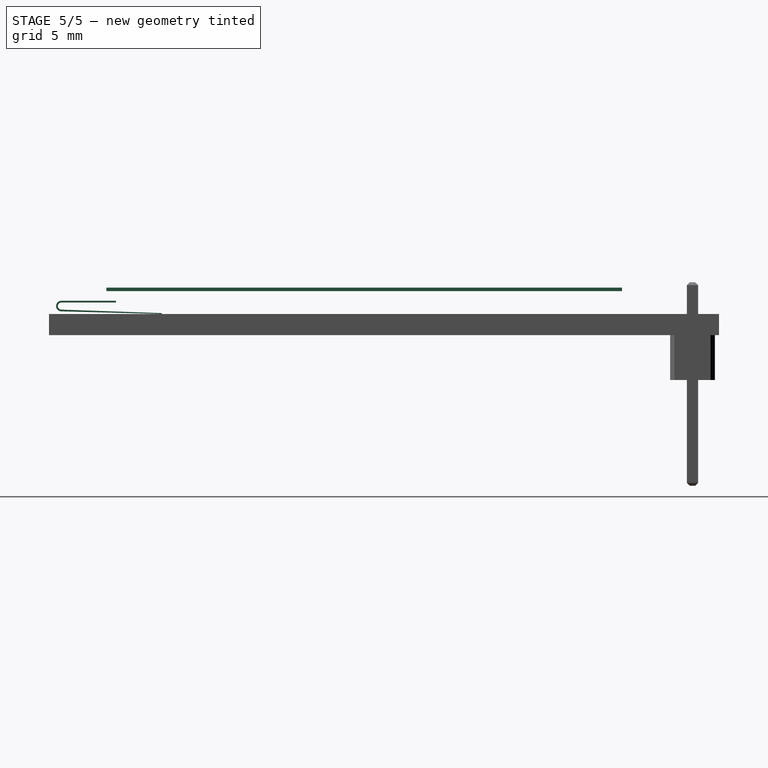
[diagram: stage 5 of 5 — right view after this stage's code; geometry added in this stage tinted green]
FEATURE [Sketcher::SketchObject] Sketch003
  ArcFitTolerance = 1e-06
  FullyConstrained = true
  MakeInternals = false
  Placement = pos=(0,0,0) rot=(0.57735,0.57735,0.57735;2.0944rad)
  expr: Constraints[10] = Sketch001.Constraints[10]
  expr: Constraints[11] = Sketch001.Constraints[11]
  expr: Constraints[34] = Sketch001.Constraints[34]
  expr: Constraints[35] = Sketch001.Constraints[35]
  expr: Constraints[36] = Sketch001.Constraints[36]
  expr: Constraints[37] = Sketch001.Constraints[37]
  expr: Constraints[38] = Sketch001.Constraints[38]
  expr: Constraints[39] = Sketch001.Constraints[39]
  expr: Constraints[40] = Sketch001.Constraints[40]
  expr: Constraints[41] = Sketch001.Constraints[41]
  expr: Constraints[55] = Sketch001.Constraints[55]
  expr: Constraints[56] = Sketch001.Constraints[56]
  expr: Constraints[57] = Sketch001.Constraints[57]
  expr: Constraints[58] = Sketch001.Constraints[58]
  expr: Constraints[59] = Sketch001.Constraints[59]
  expr: Constraints[8] = Sketch001.Constraints[8]
  expr: Constraints[9] = Sketch001.Constraints[9]
  sketch-geometry (22):
    g0: LineSegment [constr] StartX=1.5 StartY=2.54 StartZ=0 EndX=1.5 EndY=3.74 EndZ=0
    g1: LineSegment [constr] StartX=1.5 StartY=3.74 StartZ=0 EndX=-36.5 EndY=3.74 EndZ=0
    g2: LineSegment [constr] StartX=-36.5 StartY=3.74 StartZ=0 EndX=-36.5 EndY=2.54 EndZ=0
    g3: LineSegment [constr] StartX=-36.5 StartY=2.54 StartZ=0 EndX=1.5 EndY=2.54 EndZ=0
    g4: LineSegment [constr] StartX=-3.5 StartY=3.74 StartZ=0 EndX=-3.5 EndY=5.04 EndZ=0
    g5: LineSegment [constr] StartX=-3.5 StartY=5.04 StartZ=0 EndX=-33.5 EndY=5.04 EndZ=0
    g6: LineSegment StartX=-4 StartY=5.04 StartZ=0 EndX=-4 EndY=5.24 EndZ=0
    g7: LineSegment StartX=-4 StartY=5.24 StartZ=0 EndX=-33.25 EndY=5.24 EndZ=0
    g8: LineSegment StartX=-33.25 StartY=5.24 StartZ=0 EndX=-33.25 EndY=5.04 EndZ=0
    g9: LineSegment StartX=-33.25 StartY=5.04 StartZ=0 EndX=-4 EndY=5.04 EndZ=0
    g10: LineSegment [constr] StartX=-3.5 StartY=3.74 StartZ=0 EndX=-30.1 EndY=3.74 EndZ=0
    g11: LineSegment [constr] StartX=-30.1 StartY=3.74 StartZ=0 EndX=-30.1 EndY=4.49 EndZ=0
    g12: LineSegment [constr] StartX=-30.1 StartY=4.49 StartZ=0 EndX=-33.5 EndY=4.49 EndZ=0
    g13: LineSegment [constr] StartX=-33.5 StartY=4.49 StartZ=0 EndX=-33.5 EndY=5.04 EndZ=0
    g14: LineSegment [constr] StartX=-32.7 StartY=4.49 StartZ=0 EndX=-32.7 EndY=4.39 EndZ=0
    g15: LineSegment [constr] StartX=-32.7 StartY=4.39 StartZ=0 EndX=-35.8 EndY=4.39 EndZ=0
    g16: LineSegment [constr] StartX=-32.7 StartY=4.49 StartZ=0 EndX=-35.8 EndY=4.49 EndZ=0
    g17: ArcOfCircle [constr] CenterX=-35.8 CenterY=4.19 CenterZ=0 NormalX=0 NormalY=0 NormalZ=1 AngleXU=0 Radius=0.2 StartAngle=1.5708 EndAngle=4.67748
    g18: ArcOfCircle [constr] CenterX=-35.8 CenterY=4.19 CenterZ=0 NormalX=0 NormalY=0 NormalZ=1 AngleXU=0 Radius=0.3 StartAngle=1.5708 EndAngle=4.6861
    g19: LineSegment [constr] StartX=-35.807 StartY=3.99012 StartZ=0 EndX=-30.1 EndY=3.79083 EndZ=0
    g20: LineSegment [constr] StartX=-30.1 StartY=3.79083 StartZ=0 EndX=-30.1 EndY=3.74 EndZ=0
    g21: LineSegment [constr] StartX=-30.1 StartY=3.74 StartZ=0 EndX=-35.8079 EndY=3.8901 EndZ=0
  constraints (62):
    c: Coincident(g0,g1)
    c: Coincident(g1,g2)
    c: Coincident(g2,g3)
    c: Coincident(g3,g0)
    c: Vertical(g0)
    c: Vertical(g2)
    c: Horizontal(g1)
    c: Horizontal(g3)
    c: Distance(g0,g2) = 38
    c: Distance(g1,g3) = 1.2
    c: Distance(g-2,g0) = 1.5
    c: DistanceY(g-1,g0) = 2.54
    c: Coincident(g4,g5)
    c: Vertical(g4)
    c: Horizontal(g5)
    c: PointOnObject(g4,g1)
    c: Coincident(g6,g7)
    c: Coincident(g7,g8)
    c: Coincident(g8,g9)
    c: Coincident(g9,g6)
    c: Vertical(g6)
    c: Vertical(g8)
    c: Horizontal(g7)
    c: Horizontal(g9)
    c: PointOnObject(g6,g5)
    c: Coincident(g10,g4)
    c: PointOnObject(g10,g1)
    c: Coincident(g11,g10)
    c: Coincident(g12,g11)
    c: Horizontal(g12)
    c: Coincident(g13,g12)
    c: Coincident(g13,g5)
    c: Vertical(g13)
    c: Vertical(g11)
    c: DistanceX(g5,g5) = 30
    c: DistanceX(g4,g0) = 5
    c: DistanceY(g11,g11) = 0.75
    c: DistanceY(g4,g4) = 1.3
    c: DistanceY(g6,g6) = 0.2
    c: DistanceX(g6,g4) = 0.5
    c: DistanceX(g7,g7) = 29.25
    c: DistanceX(g12,g12) = 3.4
    c: PointOnObject(g14,g12)
    c: Coincident(g15,g14)
    c: Horizontal(g15)
    c: Coincident(g16,g14)
    c: Horizontal(g16)
    c: Coincident(g18,g17)
    c: Tangent(g17,g15) = -1.5708
    c: Tangent(g18,g16) = -1.5708
    c: Coincident(g20,g19)
    c: Coincident(g21,g20)
    c: Tangent(g19,g17) = -1.5708
    c: Tangent(g21,g18) = 1.5708
    c: Vertical(g14)
    c: Distance(g14,g14) = 0.1
    c: DistanceX(g15,g15) = 3.1
    c: DistanceX(g12,g14) = 0.8
    c: Radius(g17) = 0.2
    c: Angle(g19,g15) = 0.0349066
    c: PointOnObject(g19,g11)
    c: Coincident(g20,g10)
FEATURE [Part::Extrusion] Extrude002  label="Screen-noActiveArea"
  Base = -> Sketch003
  Dir = (1,0,0)
  DirMode = 2
  FaceMakerClass = Part::FaceMakerBullseye
  FaceMakerMode = 3
  LengthFwd = 9.31
  LengthRev = 1.69
  Solid = true
  Symmetric = false
FEATURE [Sketcher::SketchObject] Sketch004
  ArcFitTolerance = 1e-06
  FullyConstrained = true
  MakeInternals = false
  Placement = pos=(-1.69,0,0) rot=(0.58,0.58,0.58;2.0944rad)
  expr: Constraints[10] = Sketch001.Constraints[10]
  expr: Constraints[11] = Sketch001.Constraints[11]
  expr: Constraints[34] = Sketch001.Constraints[34]
  expr: Constraints[35] = Sketch001.Constraints[35]
  expr: Constraints[36] = Sketch001.Constraints[36]
  expr: Constraints[37] = Sketch001.Constraints[37]
  expr: Constraints[38] = Sketch001.Constraints[38]
  expr: Constraints[39] = Sketch001.Constraints[39]
  expr: Constraints[40] = Sketch001.Constraints[40]
  expr: Constraints[41] = Sketch001.Constraints[41]
  expr: Constraints[55] = Sketch001.Constraints[55]
  expr: Constraints[56] = Sketch001.Constraints[56]
  expr: Constraints[57] = Sketch001.Constraints[57]
  expr: Constraints[58] = Sketch001.Constraints[58]
  expr: Constraints[59] = Sketch001.Constraints[59]
  expr: Constraints[8] = Sketch001.Constraints[8]
  expr: Constraints[9] = Sketch001.Constraints[9]
  sketch-geometry (22):
    g0: LineSegment [constr] StartX=1.5 StartY=2.54 StartZ=0 EndX=1.5 EndY=3.74 EndZ=0
    g1: LineSegment [constr] StartX=1.5 StartY=3.74 StartZ=0 EndX=-36.5 EndY=3.74 EndZ=0
    g2: LineSegment [constr] StartX=-36.5 StartY=3.74 StartZ=0 EndX=-36.5 EndY=2.54 EndZ=0
    g3: LineSegment [constr] StartX=-36.5 StartY=2.54 StartZ=0 EndX=1.5 EndY=2.54 EndZ=0
    g4: LineSegment [constr] StartX=-3.5 StartY=3.74 StartZ=0 EndX=-3.5 EndY=5.04 EndZ=0
    g5: LineSegment [constr] StartX=-3.5 StartY=5.04 StartZ=0 EndX=-33.5 EndY=5.04 EndZ=0
    g6: LineSegment [constr] StartX=-4 StartY=5.04 StartZ=0 EndX=-4 EndY=5.24 EndZ=0
    g7: LineSegment [constr] StartX=-4 StartY=5.24 StartZ=0 EndX=-33.25 EndY=5.24 EndZ=0
    g8: LineSegment [constr] StartX=-33.25 StartY=5.24 StartZ=0 EndX=-33.25 EndY=5.04 EndZ=0
    g9: LineSegment [constr] StartX=-33.25 StartY=5.04 StartZ=0 EndX=-4 EndY=5.04 EndZ=0
    g10: LineSegment [constr] StartX=-3.5 StartY=3.74 StartZ=0 EndX=-30.1 EndY=3.74 EndZ=0
    g11: LineSegment [constr] StartX=-30.1 StartY=3.74 StartZ=0 EndX=-30.1 EndY=4.49 EndZ=0
    g12: LineSegment [constr] StartX=-30.1 StartY=4.49 StartZ=0 EndX=-33.5 EndY=4.49 EndZ=0
    g13: LineSegment [constr] StartX=-33.5 StartY=4.49 StartZ=0 EndX=-33.5 EndY=5.04 EndZ=0
    g14: LineSegment StartX=-32.7 StartY=4.49 StartZ=0 EndX=-32.7 EndY=4.39 EndZ=0
    g15: LineSegment StartX=-32.7 StartY=4.39 StartZ=0 EndX=-35.8 EndY=4.39 EndZ=0
    g16: LineSegment StartX=-32.7 StartY=4.49 StartZ=0 EndX=-35.8 EndY=4.49 EndZ=0
    g17: ArcOfCircle CenterX=-35.8 CenterY=4.19 CenterZ=0 NormalX=0 NormalY=0 NormalZ=1 AngleXU=0 Radius=0.2 StartAngle=1.5708 EndAngle=4.67748
    g18: ArcOfCircle CenterX=-35.8 CenterY=4.19 CenterZ=0 NormalX=0 NormalY=0 NormalZ=1 AngleXU=0 Radius=0.3 StartAngle=1.5708 EndAngle=4.6861
    g19: LineSegment StartX=-35.807 StartY=3.99012 StartZ=0 EndX=-30.1 EndY=3.79083 EndZ=0
    g20: LineSegment StartX=-30.1 StartY=3.79083 StartZ=0 EndX=-30.1 EndY=3.74 EndZ=0
    g21: LineSegment StartX=-30.1 StartY=3.74 StartZ=0 EndX=-35.8079 EndY=3.8901 EndZ=0
  constraints (62):
    c: Coincident(g0,g1)
    c: Coincident(g1,g2)
    c: Coincident(g2,g3)
    c: Coincident(g3,g0)
    c: Vertical(g0)
    c: Vertical(g2)
    c: Horizontal(g1)
    c: Horizontal(g3)
    c: Distance(g0,g2) = 38
    c: Distance(g1,g3) = 1.2
    c: Distance(g-2,g0) = 1.5
    c: DistanceY(g-1,g0) = 2.54
    c: Coincident(g4,g5)
    c: Vertical(g4)
    c: Horizontal(g5)
    c: PointOnObject(g4,g1)
    c: Coincident(g6,g7)
    c: Coincident(g7,g8)
    c: Coincident(g8,g9)
    c: Coincident(g9,g6)
    c: Vertical(g6)
    c: Vertical(g8)
    c: Horizontal(g7)
    c: Horizontal(g9)
    c: PointOnObject(g6,g5)
    c: Coincident(g10,g4)
    c: PointOnObject(g10,g1)
    c: Coincident(g11,g10)
    c: Coincident(g12,g11)
    c: Horizontal(g12)
    c: Coincident(g13,g12)
    c: Coincident(g13,g5)
    c: Vertical(g13)
    c: Vertical(g11)
    c: DistanceX(g5,g5) = 30
    c: DistanceX(g4,g0) = 5
    c: DistanceY(g11,g11) = 0.75
    c: DistanceY(g4,g4) = 1.3
    c: DistanceY(g6,g6) = 0.2
    c: DistanceX(g6,g4) = 0.5
    c: DistanceX(g7,g7) = 29.25
    c: DistanceX(g12,g12) = 3.4
    c: PointOnObject(g14,g12)
    c: Coincident(g15,g14)
    c: Horizontal(g15)
    c: Coincident(g16,g14)
    c: Horizontal(g16)
    c: Coincident(g18,g17)
    c: Tangent(g17,g15) = -1.5708
    c: Tangent(g18,g16) = -1.5708
    c: Coincident(g20,g19)
    c: Coincident(g21,g20)
    c: Tangent(g19,g17) = -1.5708
    c: Tangent(g21,g18) = 1.5708
    c: Vertical(g14)
    c: Distance(g14,g14) = 0.1
    c: DistanceX(g15,g15) = 3.1
    c: DistanceX(g12,g14) = 0.8
    c: Radius(g17) = 0.2
    c: Angle(g19,g15) = 0.0349066
    c: PointOnObject(g19,g11)
    c: Coincident(g20,g10)
FEATURE [Part::Extrusion] Extrude003  label="Ribbon"
  Base = -> Sketch004
  Dir = (1,0,0)
  DirMode = 2
  FaceMakerClass = Part::FaceMakerBullseye
  FaceMakerMode = 3
  LengthFwd = 7.584
  LengthRev = 0
  Solid = true
  Symmetric = false
FEATURE [Sketcher::SketchObject] Sketch008
  ArcFitTolerance = 1e-06
  AttachmentSupport = -> [Extrude002]
  ExternalGeometry = -> [Cut]
  FullyConstrained = true
  MakeInternals = false
  MapMode = 5
  Placement = pos=(0,-1.2e-15,5.24) rot=(0,0,1;0rad)
  sketch-geometry (4):
    g0: LineSegment StartX=7.71 StartY=-5.6 StartZ=0 EndX=2.126 EndY=-5.6 EndZ=0
    g1: LineSegment StartX=2.126 StartY=-5.6 StartZ=0 EndX=2.126 EndY=-27.984 EndZ=0
    g2: LineSegment StartX=2.126 StartY=-27.984 StartZ=0 EndX=7.71 EndY=-27.984 EndZ=0
    g3: LineSegment StartX=7.71 StartY=-27.984 StartZ=0 EndX=7.71 EndY=-5.6 EndZ=0
  constraints (12):
    c: Coincident(g0,g1)
    c: Coincident(g1,g2)
    c: Coincident(g2,g3)
    c: Coincident(g3,g0)
    c: Horizontal(g0)
    c: Horizontal(g2)
    c: Vertical(g1)
    c: Vertical(g3)
    c: Distance(g1,g3) = 5.584
    c: Distance(g0,g2) = 22.384
    c: Distance(g-3,g3) = 2.1
    c: Distance(g-4,g0) = 7.1
FEATURE [Part::Extrusion] Extrude007  label="ActiveAreaCutout"
  Base = -> Sketch008
  Dir = (0,0,1)
  DirMode = 2
  FaceMakerClass = Part::FaceMakerBullseye
  FaceMakerMode = 3
  LengthFwd = 0
  LengthRev = 0.1
  Solid = true
  Symmetric = false
FEATURE [Part::Cut] Cut002  label="Screen"
  Base = -> Extrude002
  Refine = true
  Tool = -> Extrude007
FEATURE [Part::Extrusion] Extrude008  label="ActiveArea-noText"
  Base = -> Sketch008
  Dir = (0,0,1)
  DirMode = 2
  FaceMakerClass = Part::FaceMakerBullseye
  FaceMakerMode = 3
  LengthFwd = 0
  LengthRev = 0.1
  Solid = true
  Symmetric = false
FEATURE [Part::Part2DObjectPython] ShapeString  # Draft 2D object (typed FeaturePython)
  AttachmentOffset = pos=(0,0,0) rot=(0,0,-1;1.5708rad)
  AttachmentSupport = -> [Extrude008]
  FontFile = <path>
  Fuse = false
  Justification = 4
  JustificationReference = 0
  KeepLeftMargin = false
  MakeFace = true
  MapMode = 45
  ObliqueAngle = 0
  Placement = pos=(4.918,-16.792,5.24) rot=(0,0,-1;1.5708rad)
  ScaleToSize = true
  Size = 1.5
  String = Active Area
  Tracking = 0
FEATURE [Part::Extrusion] Extrude009
  Base = -> ShapeString
  Dir = (0,0,1)
  DirMode = 2
  FaceMakerClass = Part::FaceMakerBullseye
  FaceMakerMode = 3
  LengthFwd = 0
  LengthRev = 0.1
  Solid = false
  Symmetric = false
FEATURE [Part::Cut] Cut003  label="ActiveArea"
  Base = -> Extrude008
  Refine = true
  Tool = -> Extrude009
FEATURE [Part::Part2DObjectPython] ShapeString001  # Draft 2D object (typed FeaturePython)
  AttachmentOffset = pos=(0,0,0) rot=(0,0,-1;1.5708rad)
  AttachmentSupport = -> [Extrude008]
  FontFile = <path>
  Fuse = false
  Justification = 4
  JustificationReference = 0
  KeepLeftMargin = false
  MakeFace = true
  MapMode = 45
  ObliqueAngle = 0
  Placement = pos=(4.918,-16.792,5.24) rot=(0,0,-1;1.5708rad)
  ScaleToSize = true
  Size = 1.5
  String = Active Area
  Tracking = 0
FEATURE [Part::Extrusion] Extrude010  label="ActiveAreaText"
  Base = -> ShapeString001
  Dir = (0,0,1)
  DirMode = 2
  FaceMakerClass = Part::FaceMakerBullseye
  FaceMakerMode = 3
  LengthFwd = 0
  LengthRev = 0.1
  Solid = false
  Symmetric = false
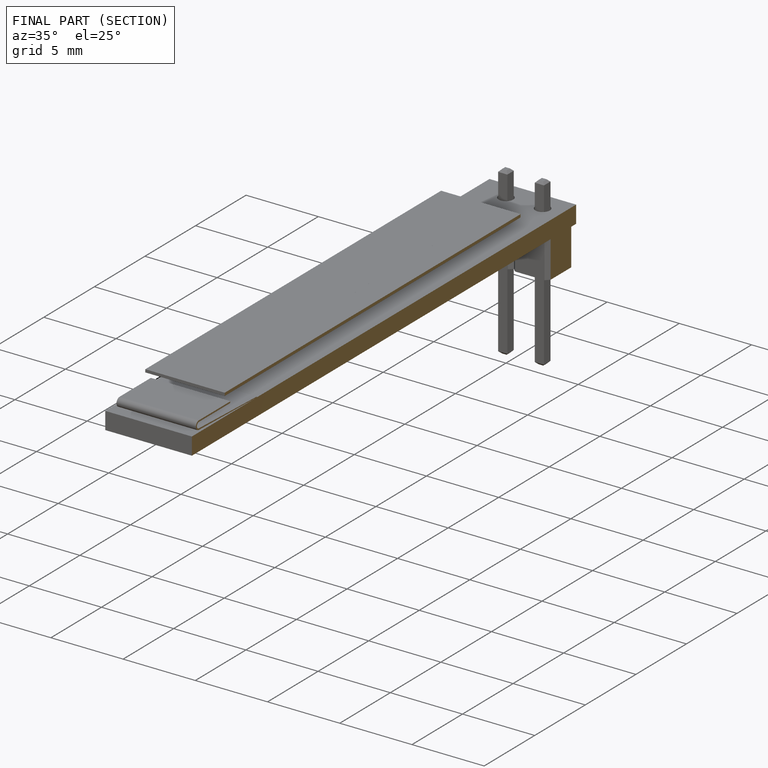
[diagram: finished part — half-section view (interior)]
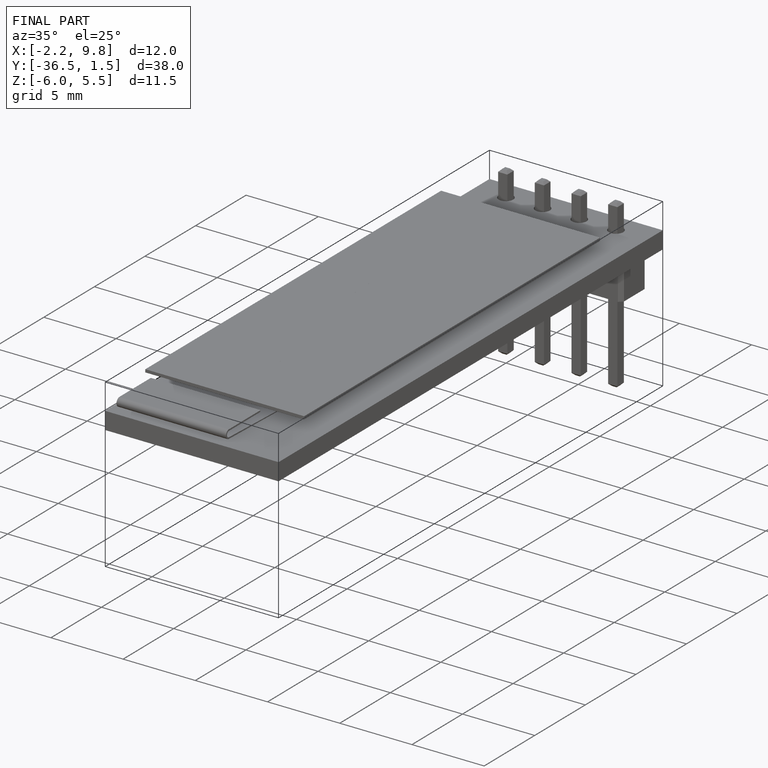
[diagram: finished part — iso view with bounding-box wireframe]
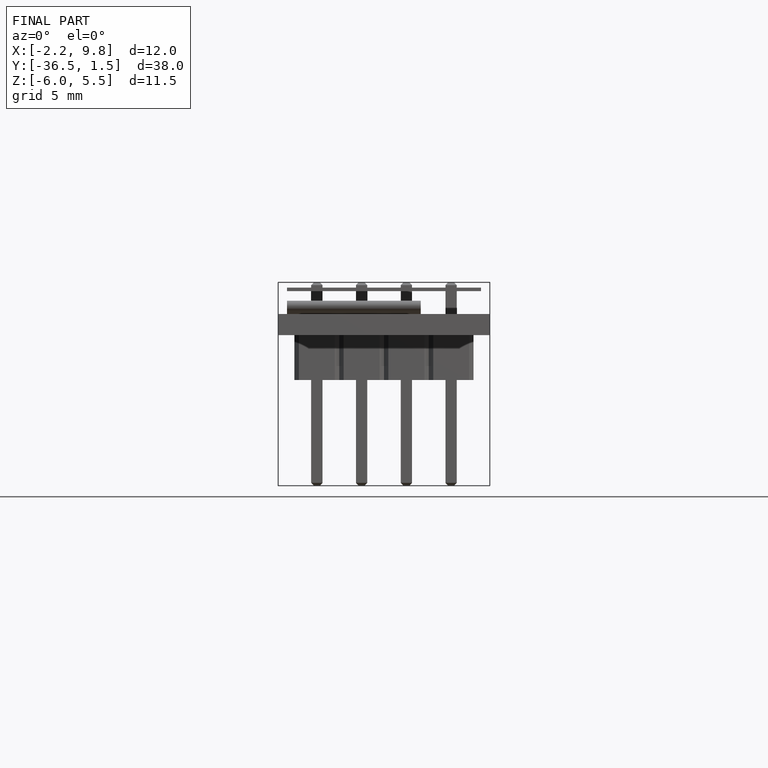
[diagram: finished part — front view with bounding-box wireframe]
